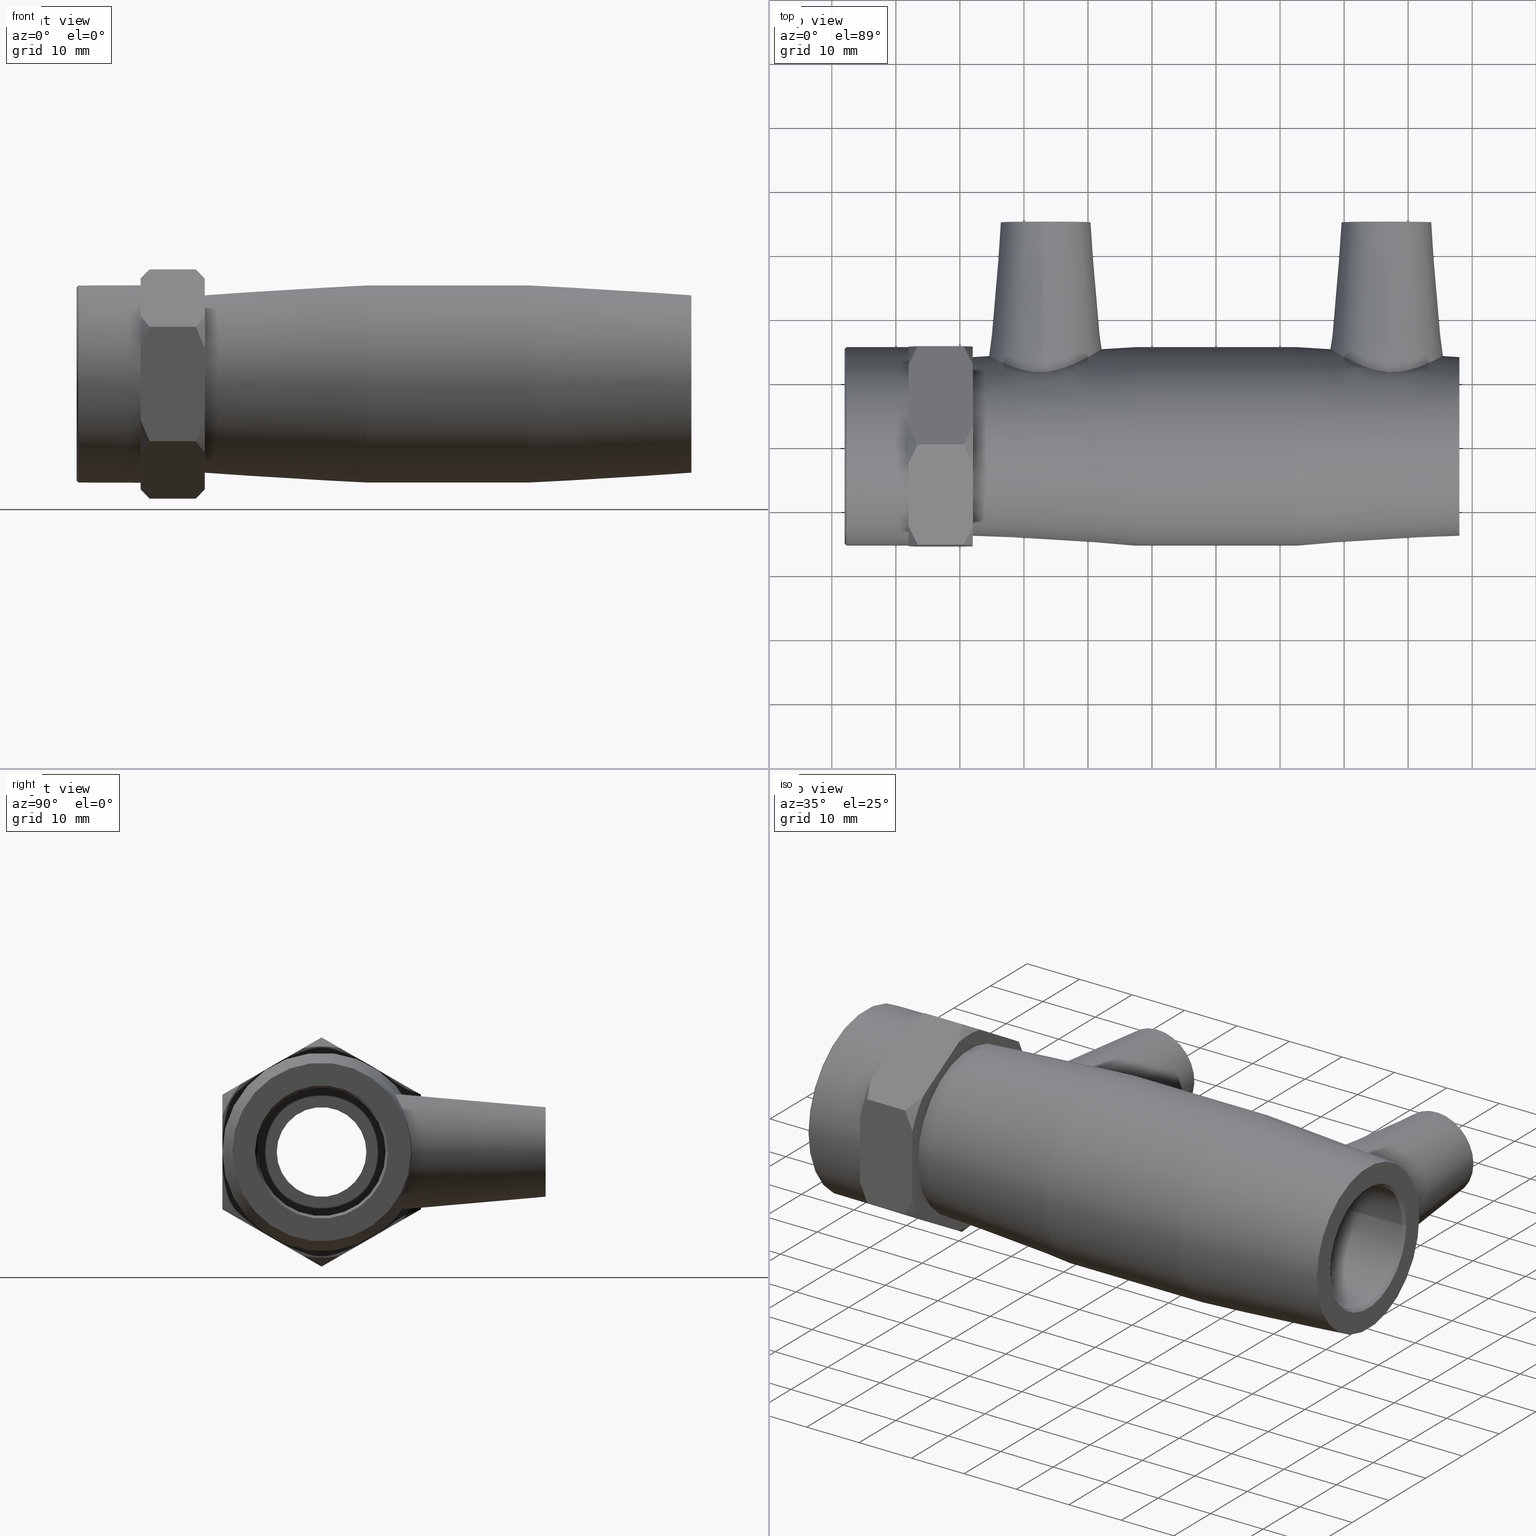
[diagram: canonical four-view strip — front | top / right | iso, engineering-drawing reading convention]
A machine part, canonical four-view strip (front | top / right | iso — engineering-drawing reading convention). The complete STEP part file that produces these views, byte-faithful:
ISO-10303-21;
HEADER;
/* Generated by software containing ST-Developer
 * from STEP Tools, Inc. (www.steptools.com) 
 */

FILE_DESCRIPTION(
/* description */ ('PLASSON FEMALE TRANSITION COUPLER 20-1/2"'),
/* implementation_level */ '2;1');

FILE_NAME(
/* name */ 
'C:\\Dropbox\\KIMPROJECTS-Inventor\\99-16-3568-Processing\\ElectroFusi
on Fittings\\493104\\493104020005.ipt.stp',
/* time_stamp */ '2017-11-06T09:15:33+02:00',
/* author */ ('KIM'),
/* organization */ (''),
/* preprocessor_version */ 'ST-DEVELOPER v15.6',
/* originating_system */ 'Autodesk Inventor 2015',
/* authorisation */ '');

FILE_SCHEMA (('AUTOMOTIVE_DESIGN { 1 0 10303 214 3 1 1 }'));
ENDSEC;

DATA;
#10=MECHANICAL_DESIGN_GEOMETRIC_PRESENTATION_REPRESENTATION('',(#13),#1437);
#11=SHAPE_REPRESENTATION_RELATIONSHIP('SRR','None',#1446,#12);
#12=ADVANCED_BREP_SHAPE_REPRESENTATION($,(#14),#1436);
#13=STYLED_ITEM('',(#1455),#14);
#14=MANIFOLD_SOLID_BREP('Solid1',#766);
#15=B_SPLINE_CURVE_WITH_KNOTS('',3,(#1338,#1339,#1340,#1341,#1342,#1343,
#1344,#1345,#1346,#1347,#1348,#1349,#1350,#1351,#1352,#1353,#1354,#1355,
#1356,#1357,#1358,#1359,#1360,#1361,#1362,#1363,#1364,#1365,#1366,#1367,
#1368,#1369,#1370,#1371,#1372,#1373,#1374,#1375),.UNSPECIFIED.,.T.,.F.,
(4,2,2,2,2,2,2,2,2,2,2,2,2,2,2,2,2,2,4),(0.,0.366937850972028,0.733875701944055,
1.0855573252233,1.43723894850253,1.78892057178177,2.14060219506101,2.50754004603304,
2.87447789700507,3.0429704455618,3.21146299411853,3.54844809123198,3.88497734946358,
4.22150660769519,4.55803586592679,4.89456512415839,5.23155022127185,5.40004276982858,
5.56853531838531),.UNSPECIFIED.);
#16=B_SPLINE_CURVE_WITH_KNOTS('',3,(#1379,#1380,#1381,#1382,#1383,#1384,
#1385,#1386,#1387,#1388,#1389,#1390,#1391,#1392,#1393,#1394,#1395,#1396,
#1397,#1398,#1399,#1400,#1401,#1402,#1403,#1404,#1405,#1406,#1407,#1408,
#1409,#1410,#1411,#1412,#1413,#1414,#1415,#1416),.UNSPECIFIED.,.T.,.F.,
(4,2,2,2,2,2,2,2,2,2,2,2,2,2,2,2,2,2,4),(0.,0.168492548556728,0.336985097113456,
0.673970194226912,1.01049945245852,1.34702871069012,1.68355796892172,2.02008722715332,
2.35707232426678,2.52556487282351,2.69405742138024,3.06099527235226,3.42793312332429,
3.77961474660353,4.13129636988277,4.48297799316201,4.83465961644125,5.20159746741328,
5.56853531838531),.UNSPECIFIED.);
#17=LINE('',#1263,#41);
#18=LINE('',#1264,#42);
#19=LINE('',#1266,#43);
#20=LINE('',#1267,#44);
#21=LINE('',#1269,#45);
#22=LINE('',#1270,#46);
#23=LINE('',#1272,#47);
#24=LINE('',#1273,#48);
#25=LINE('',#1275,#49);
#26=LINE('',#1276,#50);
#27=LINE('',#1277,#51);
#28=LINE('',#1278,#52);
#29=LINE('',#1280,#53);
#30=LINE('',#1281,#54);
#31=LINE('',#1283,#55);
#32=LINE('',#1284,#56);
#33=LINE('',#1286,#57);
#34=LINE('',#1288,#58);
#35=LINE('',#1289,#59);
#36=LINE('',#1290,#60);
#37=LINE('',#1292,#61);
#38=LINE('',#1293,#62);
#39=LINE('',#1295,#63);
#40=LINE('',#1297,#64);
#41=VECTOR('',#965,5.65060438959161);
#42=VECTOR('',#966,5.65060438959176);
#43=VECTOR('',#969,5.65060438959176);
#44=VECTOR('',#970,5.65060438959184);
#45=VECTOR('',#973,5.65060438959181);
#46=VECTOR('',#974,5.6506043895917);
#47=VECTOR('',#977,5.6506043895917);
#48=VECTOR('',#978,5.6506043895916);
#49=VECTOR('',#981,7.2);
#50=VECTOR('',#982,11.3012087791832);
#51=VECTOR('',#983,7.2);
#52=VECTOR('',#984,5.65060438959161);
#53=VECTOR('',#987,7.2);
#54=VECTOR('',#988,11.3012087791835);
#55=VECTOR('',#991,5.65060438959184);
#56=VECTOR('',#992,5.65060438959181);
#57=VECTOR('',#995,5.6506043895916);
#58=VECTOR('',#998,7.20000000000001);
#59=VECTOR('',#999,11.3012087791836);
#60=VECTOR('',#1000,7.2);
#61=VECTOR('',#1003,7.2);
#62=VECTOR('',#1004,11.3012087791834);
#63=VECTOR('',#1007,11.3012087791832);
#64=VECTOR('',#1010,11.3012087791837);
#65=(
BOUNDED_CURVE()
B_SPLINE_CURVE(2,(#1133,#1134,#1135),.UNSPECIFIED.,.F.,.F.)
B_SPLINE_CURVE_WITH_KNOTS((3,3),(0.,0.358514613542276),.UNSPECIFIED.)
CURVE()
GEOMETRIC_REPRESENTATION_ITEM()
RATIONAL_B_SPLINE_CURVE((1.,1.00462973355019,1.))
REPRESENTATION_ITEM('')
);
#66=(
BOUNDED_CURVE()
B_SPLINE_CURVE(2,(#1138,#1139,#1140),.UNSPECIFIED.,.F.,.F.)
B_SPLINE_CURVE_WITH_KNOTS((3,3),(0.,0.358514613542277),.UNSPECIFIED.)
CURVE()
GEOMETRIC_REPRESENTATION_ITEM()
RATIONAL_B_SPLINE_CURVE((1.,1.0046297335503,1.))
REPRESENTATION_ITEM('')
);
#67=(
BOUNDED_CURVE()
B_SPLINE_CURVE(2,(#1144,#1145,#1146),.UNSPECIFIED.,.F.,.F.)
B_SPLINE_CURVE_WITH_KNOTS((3,3),(0.,0.358514613542281),.UNSPECIFIED.)
CURVE()
GEOMETRIC_REPRESENTATION_ITEM()
RATIONAL_B_SPLINE_CURVE((1.,1.0046297335501,1.))
REPRESENTATION_ITEM('')
);
#68=(
BOUNDED_CURVE()
B_SPLINE_CURVE(2,(#1148,#1149,#1150),.UNSPECIFIED.,.F.,.F.)
B_SPLINE_CURVE_WITH_KNOTS((3,3),(0.,0.358514613542277),.UNSPECIFIED.)
CURVE()
GEOMETRIC_REPRESENTATION_ITEM()
RATIONAL_B_SPLINE_CURVE((1.,1.00462973355031,1.))
REPRESENTATION_ITEM('')
);
#69=(
BOUNDED_CURVE()
B_SPLINE_CURVE(2,(#1155,#1156,#1157),.UNSPECIFIED.,.F.,.F.)
B_SPLINE_CURVE_WITH_KNOTS((3,3),(0.,0.358514613542276),.UNSPECIFIED.)
CURVE()
GEOMETRIC_REPRESENTATION_ITEM()
RATIONAL_B_SPLINE_CURVE((1.,1.00462973355019,1.))
REPRESENTATION_ITEM('')
);
#70=(
BOUNDED_CURVE()
B_SPLINE_CURVE(2,(#1159,#1160,#1161),.UNSPECIFIED.,.F.,.F.)
B_SPLINE_CURVE_WITH_KNOTS((3,3),(0.,0.358514613542279),.UNSPECIFIED.)
CURVE()
GEOMETRIC_REPRESENTATION_ITEM()
RATIONAL_B_SPLINE_CURVE((1.,1.00462973355031,1.))
REPRESENTATION_ITEM('')
);
#71=(
BOUNDED_CURVE()
B_SPLINE_CURVE(2,(#1166,#1167,#1168),.UNSPECIFIED.,.F.,.F.)
B_SPLINE_CURVE_WITH_KNOTS((3,3),(0.,0.358514613542285),.UNSPECIFIED.)
CURVE()
GEOMETRIC_REPRESENTATION_ITEM()
RATIONAL_B_SPLINE_CURVE((1.,1.00462973355022,1.))
REPRESENTATION_ITEM('')
);
#72=(
BOUNDED_CURVE()
B_SPLINE_CURVE(2,(#1170,#1171,#1172),.UNSPECIFIED.,.F.,.F.)
B_SPLINE_CURVE_WITH_KNOTS((3,3),(0.,0.358514613542282),.UNSPECIFIED.)
CURVE()
GEOMETRIC_REPRESENTATION_ITEM()
RATIONAL_B_SPLINE_CURVE((1.,1.00462973355018,1.))
REPRESENTATION_ITEM('')
);
#73=(
BOUNDED_CURVE()
B_SPLINE_CURVE(2,(#1177,#1178,#1179),.UNSPECIFIED.,.F.,.F.)
B_SPLINE_CURVE_WITH_KNOTS((3,3),(0.,0.358514613542286),.UNSPECIFIED.)
CURVE()
GEOMETRIC_REPRESENTATION_ITEM()
RATIONAL_B_SPLINE_CURVE((1.,1.00462973355033,1.))
REPRESENTATION_ITEM('')
);
#74=(
BOUNDED_CURVE()
B_SPLINE_CURVE(2,(#1182,#1183,#1184),.UNSPECIFIED.,.F.,.F.)
B_SPLINE_CURVE_WITH_KNOTS((3,3),(0.,0.358514613542285),.UNSPECIFIED.)
CURVE()
GEOMETRIC_REPRESENTATION_ITEM()
RATIONAL_B_SPLINE_CURVE((1.,1.0046297335502,1.))
REPRESENTATION_ITEM('')
);
#75=(
BOUNDED_CURVE()
B_SPLINE_CURVE(2,(#1188,#1189,#1190),.UNSPECIFIED.,.F.,.F.)
B_SPLINE_CURVE_WITH_KNOTS((3,3),(0.,0.358514613542279),.UNSPECIFIED.)
CURVE()
GEOMETRIC_REPRESENTATION_ITEM()
RATIONAL_B_SPLINE_CURVE((1.,1.00462973355008,1.))
REPRESENTATION_ITEM('')
);
#76=(
BOUNDED_CURVE()
B_SPLINE_CURVE(2,(#1192,#1193,#1194),.UNSPECIFIED.,.F.,.F.)
B_SPLINE_CURVE_WITH_KNOTS((3,3),(0.,0.358514613542284),.UNSPECIFIED.)
CURVE()
GEOMETRIC_REPRESENTATION_ITEM()
RATIONAL_B_SPLINE_CURVE((1.,1.00462973355009,1.))
REPRESENTATION_ITEM('')
);
#77=(
BOUNDED_CURVE()
B_SPLINE_CURVE(2,(#1199,#1200,#1201),.UNSPECIFIED.,.F.,.F.)
B_SPLINE_CURVE_WITH_KNOTS((3,3),(0.,0.358514613542286),.UNSPECIFIED.)
CURVE()
GEOMETRIC_REPRESENTATION_ITEM()
RATIONAL_B_SPLINE_CURVE((1.,1.00462973355007,1.))
REPRESENTATION_ITEM('')
);
#78=(
BOUNDED_CURVE()
B_SPLINE_CURVE(2,(#1204,#1205,#1206),.UNSPECIFIED.,.F.,.F.)
B_SPLINE_CURVE_WITH_KNOTS((3,3),(0.,0.358514613542283),.UNSPECIFIED.)
CURVE()
GEOMETRIC_REPRESENTATION_ITEM()
RATIONAL_B_SPLINE_CURVE((1.,1.00462973355015,1.))
REPRESENTATION_ITEM('')
);
#79=(
BOUNDED_CURVE()
B_SPLINE_CURVE(2,(#1210,#1211,#1212),.UNSPECIFIED.,.F.,.F.)
B_SPLINE_CURVE_WITH_KNOTS((3,3),(0.,0.358514613542283),.UNSPECIFIED.)
CURVE()
GEOMETRIC_REPRESENTATION_ITEM()
RATIONAL_B_SPLINE_CURVE((1.,1.00462973355003,1.))
REPRESENTATION_ITEM('')
);
#80=(
BOUNDED_CURVE()
B_SPLINE_CURVE(2,(#1215,#1216,#1217),.UNSPECIFIED.,.F.,.F.)
B_SPLINE_CURVE_WITH_KNOTS((3,3),(0.,0.358514613542278),.UNSPECIFIED.)
CURVE()
GEOMETRIC_REPRESENTATION_ITEM()
RATIONAL_B_SPLINE_CURVE((1.,1.00462973355015,1.))
REPRESENTATION_ITEM('')
);
#81=(
BOUNDED_CURVE()
B_SPLINE_CURVE(2,(#1221,#1222,#1223),.UNSPECIFIED.,.F.,.F.)
B_SPLINE_CURVE_WITH_KNOTS((3,3),(0.,0.358514613542278),.UNSPECIFIED.)
CURVE()
GEOMETRIC_REPRESENTATION_ITEM()
RATIONAL_B_SPLINE_CURVE((1.,1.00462973355004,1.))
REPRESENTATION_ITEM('')
);
#82=(
BOUNDED_CURVE()
B_SPLINE_CURVE(2,(#1225,#1226,#1227),.UNSPECIFIED.,.F.,.F.)
B_SPLINE_CURVE_WITH_KNOTS((3,3),(0.,0.358514613542278),.UNSPECIFIED.)
CURVE()
GEOMETRIC_REPRESENTATION_ITEM()
RATIONAL_B_SPLINE_CURVE((1.,1.00462973354997,1.))
REPRESENTATION_ITEM('')
);
#83=(
BOUNDED_CURVE()
B_SPLINE_CURVE(2,(#1232,#1233,#1234),.UNSPECIFIED.,.F.,.F.)
B_SPLINE_CURVE_WITH_KNOTS((3,3),(0.,0.358514613542287),.UNSPECIFIED.)
CURVE()
GEOMETRIC_REPRESENTATION_ITEM()
RATIONAL_B_SPLINE_CURVE((1.,1.0046297335501,1.))
REPRESENTATION_ITEM('')
);
#84=(
BOUNDED_CURVE()
B_SPLINE_CURVE(2,(#1236,#1237,#1238),.UNSPECIFIED.,.F.,.F.)
B_SPLINE_CURVE_WITH_KNOTS((3,3),(0.,0.358514613542285),.UNSPECIFIED.)
CURVE()
GEOMETRIC_REPRESENTATION_ITEM()
RATIONAL_B_SPLINE_CURVE((1.,1.00462973355006,1.))
REPRESENTATION_ITEM('')
);
#85=(
BOUNDED_CURVE()
B_SPLINE_CURVE(2,(#1243,#1244,#1245),.UNSPECIFIED.,.F.,.F.)
B_SPLINE_CURVE_WITH_KNOTS((3,3),(0.,0.358514613542278),.UNSPECIFIED.)
CURVE()
GEOMETRIC_REPRESENTATION_ITEM()
RATIONAL_B_SPLINE_CURVE((1.,1.00462973355004,1.))
REPRESENTATION_ITEM('')
);
#86=(
BOUNDED_CURVE()
B_SPLINE_CURVE(2,(#1248,#1249,#1250),.UNSPECIFIED.,.F.,.F.)
B_SPLINE_CURVE_WITH_KNOTS((3,3),(0.,0.358514613542281),.UNSPECIFIED.)
CURVE()
GEOMETRIC_REPRESENTATION_ITEM()
RATIONAL_B_SPLINE_CURVE((1.,1.00462973355004,1.))
REPRESENTATION_ITEM('')
);
#87=(
BOUNDED_CURVE()
B_SPLINE_CURVE(2,(#1254,#1255,#1256),.UNSPECIFIED.,.F.,.F.)
B_SPLINE_CURVE_WITH_KNOTS((3,3),(0.,0.358514613542281),.UNSPECIFIED.)
CURVE()
GEOMETRIC_REPRESENTATION_ITEM()
RATIONAL_B_SPLINE_CURVE((1.,1.00462973355008,1.))
REPRESENTATION_ITEM('')
);
#88=(
BOUNDED_CURVE()
B_SPLINE_CURVE(2,(#1259,#1260,#1261),.UNSPECIFIED.,.F.,.F.)
B_SPLINE_CURVE_WITH_KNOTS((3,3),(0.,0.358514613542285),.UNSPECIFIED.)
CURVE()
GEOMETRIC_REPRESENTATION_ITEM()
RATIONAL_B_SPLINE_CURVE((1.,1.00462973355014,1.))
REPRESENTATION_ITEM('')
);
#89=CYLINDRICAL_SURFACE('',#773,10.);
#90=CYLINDRICAL_SURFACE('',#780,9.31550000000001);
#91=CYLINDRICAL_SURFACE('',#784,15.5);
#92=CYLINDRICAL_SURFACE('',#827,7.);
#93=CYLINDRICAL_SURFACE('',#835,2.);
#94=CYLINDRICAL_SURFACE('',#837,5.);
#95=CYLINDRICAL_SURFACE('',#843,2.);
#96=CYLINDRICAL_SURFACE('',#845,5.);
#97=CYLINDRICAL_SURFACE('',#855,15.5);
#98=CYLINDRICAL_SURFACE('',#863,10.);
#99=PLANE('',#771);
#100=PLANE('',#778);
#101=PLANE('',#815);
#102=PLANE('',#816);
#103=PLANE('',#817);
#104=PLANE('',#818);
#105=PLANE('',#819);
#106=PLANE('',#820);
#107=PLANE('',#821);
#108=PLANE('',#822);
#109=PLANE('',#823);
#110=PLANE('',#824);
#111=PLANE('',#825);
#112=PLANE('',#826);
#113=PLANE('',#830);
#114=PLANE('',#831);
#115=PLANE('',#833);
#116=PLANE('',#840);
#117=PLANE('',#841);
#118=PLANE('',#848);
#119=PLANE('',#849);
#120=PLANE('',#853);
#121=PLANE('',#861);
#122=PLANE('',#865);
#123=FACE_BOUND('',#208,.T.);
#124=FACE_BOUND('',#210,.T.);
#125=FACE_BOUND('',#212,.T.);
#126=FACE_BOUND('',#214,.T.);
#127=FACE_BOUND('',#216,.T.);
#128=FACE_BOUND('',#218,.T.);
#129=FACE_BOUND('',#220,.T.);
#130=FACE_BOUND('',#222,.T.);
#131=FACE_BOUND('',#248,.T.);
#132=FACE_BOUND('',#250,.T.);
#133=FACE_BOUND('',#252,.T.);
#134=FACE_BOUND('',#255,.T.);
#135=FACE_BOUND('',#257,.T.);
#136=FACE_BOUND('',#259,.T.);
#137=FACE_BOUND('',#262,.T.);
#138=FACE_BOUND('',#264,.T.);
#139=FACE_BOUND('',#266,.T.);
#140=FACE_BOUND('',#268,.T.);
#141=FACE_BOUND('',#270,.T.);
#142=FACE_BOUND('',#272,.T.);
#143=FACE_BOUND('',#274,.T.);
#144=FACE_BOUND('',#276,.T.);
#145=FACE_BOUND('',#278,.T.);
#146=FACE_BOUND('',#279,.T.);
#147=FACE_BOUND('',#281,.T.);
#148=FACE_BOUND('',#283,.T.);
#149=FACE_BOUND('',#285,.T.);
#150=FACE_BOUND('',#287,.T.);
#151=FACE_BOUND('',#289,.T.);
#152=FACE_BOUND('',#290,.T.);
#153=FACE_OUTER_BOUND('',#207,.T.);
#154=FACE_OUTER_BOUND('',#209,.T.);
#155=FACE_OUTER_BOUND('',#211,.T.);
#156=FACE_OUTER_BOUND('',#213,.T.);
#157=FACE_OUTER_BOUND('',#215,.T.);
#158=FACE_OUTER_BOUND('',#217,.T.);
#159=FACE_OUTER_BOUND('',#219,.T.);
#160=FACE_OUTER_BOUND('',#221,.T.);
#161=FACE_OUTER_BOUND('',#223,.T.);
#162=FACE_OUTER_BOUND('',#224,.T.);
#163=FACE_OUTER_BOUND('',#225,.T.);
#164=FACE_OUTER_BOUND('',#226,.T.);
#165=FACE_OUTER_BOUND('',#227,.T.);
#166=FACE_OUTER_BOUND('',#228,.T.);
#167=FACE_OUTER_BOUND('',#229,.T.);
#168=FACE_OUTER_BOUND('',#230,.T.);
#169=FACE_OUTER_BOUND('',#231,.T.);
#170=FACE_OUTER_BOUND('',#232,.T.);
#171=FACE_OUTER_BOUND('',#233,.T.);
#172=FACE_OUTER_BOUND('',#234,.T.);
#173=FACE_OUTER_BOUND('',#235,.T.);
#174=FACE_OUTER_BOUND('',#236,.T.);
#175=FACE_OUTER_BOUND('',#237,.T.);
#176=FACE_OUTER_BOUND('',#238,.T.);
#177=FACE_OUTER_BOUND('',#239,.T.);
#178=FACE_OUTER_BOUND('',#240,.T.);
#179=FACE_OUTER_BOUND('',#241,.T.);
#180=FACE_OUTER_BOUND('',#242,.T.);
#181=FACE_OUTER_BOUND('',#243,.T.);
#182=FACE_OUTER_BOUND('',#244,.T.);
#183=FACE_OUTER_BOUND('',#245,.T.);
#184=FACE_OUTER_BOUND('',#246,.T.);
#185=FACE_OUTER_BOUND('',#247,.T.);
#186=FACE_OUTER_BOUND('',#249,.T.);
#187=FACE_OUTER_BOUND('',#251,.T.);
#188=FACE_OUTER_BOUND('',#253,.T.);
#189=FACE_OUTER_BOUND('',#254,.T.);
#190=FACE_OUTER_BOUND('',#256,.T.);
#191=FACE_OUTER_BOUND('',#258,.T.);
#192=FACE_OUTER_BOUND('',#260,.T.);
#193=FACE_OUTER_BOUND('',#261,.T.);
#194=FACE_OUTER_BOUND('',#263,.T.);
#195=FACE_OUTER_BOUND('',#265,.T.);
#196=FACE_OUTER_BOUND('',#267,.T.);
#197=FACE_OUTER_BOUND('',#269,.T.);
#198=FACE_OUTER_BOUND('',#271,.T.);
#199=FACE_OUTER_BOUND('',#273,.T.);
#200=FACE_OUTER_BOUND('',#275,.T.);
#201=FACE_OUTER_BOUND('',#277,.T.);
#202=FACE_OUTER_BOUND('',#280,.T.);
#203=FACE_OUTER_BOUND('',#282,.T.);
#204=FACE_OUTER_BOUND('',#284,.T.);
#205=FACE_OUTER_BOUND('',#286,.T.);
#206=FACE_OUTER_BOUND('',#288,.T.);
#207=EDGE_LOOP('',(#502));
#208=EDGE_LOOP('',(#503));
#209=EDGE_LOOP('',(#504));
#210=EDGE_LOOP('',(#505));
#211=EDGE_LOOP('',(#506));
#212=EDGE_LOOP('',(#507));
#213=EDGE_LOOP('',(#508));
#214=EDGE_LOOP('',(#509));
#215=EDGE_LOOP('',(#510));
#216=EDGE_LOOP('',(#511));
#217=EDGE_LOOP('',(#512));
#218=EDGE_LOOP('',(#513));
#219=EDGE_LOOP('',(#514));
#220=EDGE_LOOP('',(#515));
#221=EDGE_LOOP('',(#516,#517,#518,#519,#520,#521));
#222=EDGE_LOOP('',(#522));
#223=EDGE_LOOP('',(#523,#524,#525));
#224=EDGE_LOOP('',(#526,#527,#528));
#225=EDGE_LOOP('',(#529,#530,#531));
#226=EDGE_LOOP('',(#532,#533,#534));
#227=EDGE_LOOP('',(#535,#536,#537));
#228=EDGE_LOOP('',(#538,#539,#540));
#229=EDGE_LOOP('',(#541,#542,#543));
#230=EDGE_LOOP('',(#544,#545,#546));
#231=EDGE_LOOP('',(#547,#548,#549));
#232=EDGE_LOOP('',(#550,#551,#552));
#233=EDGE_LOOP('',(#553,#554,#555));
#234=EDGE_LOOP('',(#556,#557,#558));
#235=EDGE_LOOP('',(#559,#560,#561,#562));
#236=EDGE_LOOP('',(#563,#564,#565,#566));
#237=EDGE_LOOP('',(#567,#568,#569,#570));
#238=EDGE_LOOP('',(#571,#572,#573,#574));
#239=EDGE_LOOP('',(#575,#576,#577,#578,#579,#580,#581,#582,#583));
#240=EDGE_LOOP('',(#584,#585,#586,#587,#588,#589,#590,#591,#592));
#241=EDGE_LOOP('',(#593,#594,#595,#596));
#242=EDGE_LOOP('',(#597,#598,#599,#600));
#243=EDGE_LOOP('',(#601,#602,#603,#604,#605,#606,#607,#608,#609));
#244=EDGE_LOOP('',(#610,#611,#612,#613,#614,#615,#616,#617,#618));
#245=EDGE_LOOP('',(#619,#620,#621,#622,#623,#624,#625,#626,#627));
#246=EDGE_LOOP('',(#628,#629,#630,#631,#632,#633,#634,#635,#636));
#247=EDGE_LOOP('',(#637));
#248=EDGE_LOOP('',(#638));
#249=EDGE_LOOP('',(#639));
#250=EDGE_LOOP('',(#640));
#251=EDGE_LOOP('',(#641,#642,#643,#644,#645,#646,#647,#648,#649,#650,#651,
#652));
#252=EDGE_LOOP('',(#653));
#253=EDGE_LOOP('',(#654));
#254=EDGE_LOOP('',(#655));
#255=EDGE_LOOP('',(#656));
#256=EDGE_LOOP('',(#657));
#257=EDGE_LOOP('',(#658));
#258=EDGE_LOOP('',(#659));
#259=EDGE_LOOP('',(#660));
#260=EDGE_LOOP('',(#661));
#261=EDGE_LOOP('',(#662));
#262=EDGE_LOOP('',(#663));
#263=EDGE_LOOP('',(#664));
#264=EDGE_LOOP('',(#665));
#265=EDGE_LOOP('',(#666));
#266=EDGE_LOOP('',(#667));
#267=EDGE_LOOP('',(#668));
#268=EDGE_LOOP('',(#669));
#269=EDGE_LOOP('',(#670));
#270=EDGE_LOOP('',(#671));
#271=EDGE_LOOP('',(#672));
#272=EDGE_LOOP('',(#673));
#273=EDGE_LOOP('',(#674));
#274=EDGE_LOOP('',(#675));
#275=EDGE_LOOP('',(#676));
#276=EDGE_LOOP('',(#677));
#277=EDGE_LOOP('',(#678));
#278=EDGE_LOOP('',(#679));
#279=EDGE_LOOP('',(#680));
#280=EDGE_LOOP('',(#681));
#281=EDGE_LOOP('',(#682));
#282=EDGE_LOOP('',(#683));
#283=EDGE_LOOP('',(#684));
#284=EDGE_LOOP('',(#685));
#285=EDGE_LOOP('',(#686));
#286=EDGE_LOOP('',(#687));
#287=EDGE_LOOP('',(#688));
#288=EDGE_LOOP('',(#689));
#289=EDGE_LOOP('',(#690));
#290=EDGE_LOOP('',(#691));
#291=CIRCLE('',#769,10.4);
#292=CIRCLE('',#770,10.);
#293=CIRCLE('',#772,13.95);
#294=CIRCLE('',#774,10.);
#295=CIRCLE('',#776,9.31550000000001);
#296=CIRCLE('',#777,9.6155);
#297=CIRCLE('',#779,15.2);
#298=CIRCLE('',#781,9.31550000000001);
#299=CIRCLE('',#783,15.5);
#300=CIRCLE('',#785,15.5);
#301=CIRCLE('',#786,15.5);
#302=CIRCLE('',#787,15.5);
#303=CIRCLE('',#788,15.5);
#304=CIRCLE('',#789,15.5);
#305=CIRCLE('',#790,15.5);
#306=CIRCLE('',#792,16.4978583448784);
#307=CIRCLE('',#794,16.4978583448784);
#308=CIRCLE('',#796,16.4978583448784);
#309=CIRCLE('',#798,16.4978583448784);
#310=CIRCLE('',#800,16.4978583448784);
#311=CIRCLE('',#802,16.4978583448784);
#312=CIRCLE('',#804,16.4978583448784);
#313=CIRCLE('',#806,16.4978583448784);
#314=CIRCLE('',#808,16.4978583448784);
#315=CIRCLE('',#810,16.4978583448784);
#316=CIRCLE('',#812,16.4978583448784);
#317=CIRCLE('',#814,16.4978583448784);
#318=CIRCLE('',#828,7.00000000000001);
#319=CIRCLE('',#829,7.);
#320=CIRCLE('',#832,13.95);
#321=CIRCLE('',#834,2.);
#322=CIRCLE('',#836,2.);
#323=CIRCLE('',#838,5.);
#324=CIRCLE('',#839,5.);
#325=CIRCLE('',#842,2.);
#326=CIRCLE('',#844,2.);
#327=CIRCLE('',#846,5.);
#328=CIRCLE('',#847,5.);
#329=CIRCLE('',#850,7.);
#330=CIRCLE('',#852,7.);
#331=CIRCLE('',#856,15.5);
#332=CIRCLE('',#857,15.5);
#333=CIRCLE('',#860,11.0486123709054);
#334=CIRCLE('',#862,10.);
#335=CIRCLE('',#864,10.);
#336=VERTEX_POINT('',#1093);
#337=VERTEX_POINT('',#1095);
#338=VERTEX_POINT('',#1098);
#339=VERTEX_POINT('',#1101);
#340=VERTEX_POINT('',#1104);
#341=VERTEX_POINT('',#1106);
#342=VERTEX_POINT('',#1109);
#343=VERTEX_POINT('',#1112);
#344=VERTEX_POINT('',#1115);
#345=VERTEX_POINT('',#1118);
#346=VERTEX_POINT('',#1119);
#347=VERTEX_POINT('',#1121);
#348=VERTEX_POINT('',#1123);
#349=VERTEX_POINT('',#1125);
#350=VERTEX_POINT('',#1127);
#351=VERTEX_POINT('',#1131);
#352=VERTEX_POINT('',#1132);
#353=VERTEX_POINT('',#1136);
#354=VERTEX_POINT('',#1142);
#355=VERTEX_POINT('',#1143);
#356=VERTEX_POINT('',#1147);
#357=VERTEX_POINT('',#1153);
#358=VERTEX_POINT('',#1154);
#359=VERTEX_POINT('',#1158);
#360=VERTEX_POINT('',#1164);
#361=VERTEX_POINT('',#1165);
#362=VERTEX_POINT('',#1169);
#363=VERTEX_POINT('',#1175);
#364=VERTEX_POINT('',#1176);
#365=VERTEX_POINT('',#1180);
#366=VERTEX_POINT('',#1186);
#367=VERTEX_POINT('',#1187);
#368=VERTEX_POINT('',#1191);
#369=VERTEX_POINT('',#1197);
#370=VERTEX_POINT('',#1198);
#371=VERTEX_POINT('',#1202);
#372=VERTEX_POINT('',#1208);
#373=VERTEX_POINT('',#1209);
#374=VERTEX_POINT('',#1213);
#375=VERTEX_POINT('',#1219);
#376=VERTEX_POINT('',#1220);
#377=VERTEX_POINT('',#1224);
#378=VERTEX_POINT('',#1230);
#379=VERTEX_POINT('',#1231);
#380=VERTEX_POINT('',#1235);
#381=VERTEX_POINT('',#1241);
#382=VERTEX_POINT('',#1242);
#383=VERTEX_POINT('',#1246);
#384=VERTEX_POINT('',#1252);
#385=VERTEX_POINT('',#1253);
#386=VERTEX_POINT('',#1257);
#387=VERTEX_POINT('',#1299);
#388=VERTEX_POINT('',#1301);
#389=VERTEX_POINT('',#1305);
#390=VERTEX_POINT('',#1308);
#391=VERTEX_POINT('',#1311);
#392=VERTEX_POINT('',#1314);
#393=VERTEX_POINT('',#1316);
#394=VERTEX_POINT('',#1320);
#395=VERTEX_POINT('',#1323);
#396=VERTEX_POINT('',#1326);
#397=VERTEX_POINT('',#1328);
#398=VERTEX_POINT('',#1332);
#399=VERTEX_POINT('',#1335);
#400=VERTEX_POINT('',#1337);
#401=VERTEX_POINT('',#1378);
#402=VERTEX_POINT('',#1418);
#403=VERTEX_POINT('',#1420);
#404=VERTEX_POINT('',#1424);
#405=VERTEX_POINT('',#1427);
#406=VERTEX_POINT('',#1430);
#407=EDGE_CURVE('',#336,#336,#291,.T.);
#408=EDGE_CURVE('',#337,#337,#292,.T.);
#409=EDGE_CURVE('',#338,#338,#293,.T.);
#410=EDGE_CURVE('',#339,#339,#294,.T.);
#411=EDGE_CURVE('',#340,#340,#295,.T.);
#412=EDGE_CURVE('',#341,#341,#296,.T.);
#413=EDGE_CURVE('',#342,#342,#297,.T.);
#414=EDGE_CURVE('',#343,#343,#298,.T.);
#415=EDGE_CURVE('',#344,#344,#299,.T.);
#416=EDGE_CURVE('',#345,#346,#300,.T.);
#417=EDGE_CURVE('',#346,#347,#301,.T.);
#418=EDGE_CURVE('',#347,#348,#302,.T.);
#419=EDGE_CURVE('',#348,#349,#303,.T.);
#420=EDGE_CURVE('',#349,#350,#304,.T.);
#421=EDGE_CURVE('',#350,#345,#305,.T.);
#422=EDGE_CURVE('',#351,#352,#65,.T.);
#423=EDGE_CURVE('',#353,#351,#306,.T.);
#424=EDGE_CURVE('',#352,#353,#66,.T.);
#425=EDGE_CURVE('',#354,#355,#67,.T.);
#426=EDGE_CURVE('',#356,#354,#68,.T.);
#427=EDGE_CURVE('',#355,#356,#307,.T.);
#428=EDGE_CURVE('',#357,#358,#69,.T.);
#429=EDGE_CURVE('',#359,#357,#70,.T.);
#430=EDGE_CURVE('',#358,#359,#308,.T.);
#431=EDGE_CURVE('',#360,#361,#71,.T.);
#432=EDGE_CURVE('',#362,#360,#72,.T.);
#433=EDGE_CURVE('',#361,#362,#309,.T.);
#434=EDGE_CURVE('',#363,#364,#73,.T.);
#435=EDGE_CURVE('',#365,#363,#310,.T.);
#436=EDGE_CURVE('',#364,#365,#74,.T.);
#437=EDGE_CURVE('',#366,#367,#75,.T.);
#438=EDGE_CURVE('',#368,#366,#76,.T.);
#439=EDGE_CURVE('',#367,#368,#311,.T.);
#440=EDGE_CURVE('',#369,#370,#77,.T.);
#441=EDGE_CURVE('',#371,#369,#312,.T.);
#442=EDGE_CURVE('',#370,#371,#78,.T.);
#443=EDGE_CURVE('',#372,#373,#79,.T.);
#444=EDGE_CURVE('',#374,#372,#313,.T.);
#445=EDGE_CURVE('',#373,#374,#80,.T.);
#446=EDGE_CURVE('',#375,#376,#81,.T.);
#447=EDGE_CURVE('',#377,#375,#82,.T.);
#448=EDGE_CURVE('',#376,#377,#314,.T.);
#449=EDGE_CURVE('',#378,#379,#83,.T.);
#450=EDGE_CURVE('',#380,#378,#84,.T.);
#451=EDGE_CURVE('',#379,#380,#315,.T.);
#452=EDGE_CURVE('',#381,#382,#85,.T.);
#453=EDGE_CURVE('',#383,#381,#316,.T.);
#454=EDGE_CURVE('',#382,#383,#86,.T.);
#455=EDGE_CURVE('',#384,#385,#87,.T.);
#456=EDGE_CURVE('',#386,#384,#317,.T.);
#457=EDGE_CURVE('',#385,#386,#88,.T.);
#458=EDGE_CURVE('',#368,#347,#17,.T.);
#459=EDGE_CURVE('',#346,#367,#18,.T.);
#460=EDGE_CURVE('',#359,#346,#19,.T.);
#461=EDGE_CURVE('',#345,#358,#20,.T.);
#462=EDGE_CURVE('',#356,#350,#21,.T.);
#463=EDGE_CURVE('',#349,#355,#22,.T.);
#464=EDGE_CURVE('',#362,#349,#23,.T.);
#465=EDGE_CURVE('',#348,#361,#24,.T.);
#466=EDGE_CURVE('',#385,#366,#25,.T.);
#467=EDGE_CURVE('',#386,#380,#26,.T.);
#468=EDGE_CURVE('',#378,#364,#27,.T.);
#469=EDGE_CURVE('',#347,#365,#28,.T.);
#470=EDGE_CURVE('',#382,#357,#29,.T.);
#471=EDGE_CURVE('',#383,#384,#30,.T.);
#472=EDGE_CURVE('',#351,#345,#31,.T.);
#473=EDGE_CURVE('',#350,#353,#32,.T.);
#474=EDGE_CURVE('',#363,#348,#33,.T.);
#475=EDGE_CURVE('',#373,#354,#34,.T.);
#476=EDGE_CURVE('',#374,#377,#35,.T.);
#477=EDGE_CURVE('',#375,#352,#36,.T.);
#478=EDGE_CURVE('',#370,#360,#37,.T.);
#479=EDGE_CURVE('',#371,#372,#38,.T.);
#480=EDGE_CURVE('',#379,#369,#39,.T.);
#481=EDGE_CURVE('',#376,#381,#40,.T.);
#482=EDGE_CURVE('',#387,#387,#318,.T.);
#483=EDGE_CURVE('',#388,#388,#319,.T.);
#484=EDGE_CURVE('',#389,#389,#320,.T.);
#485=EDGE_CURVE('',#390,#390,#321,.T.);
#486=EDGE_CURVE('',#391,#391,#322,.T.);
#487=EDGE_CURVE('',#392,#392,#323,.T.);
#488=EDGE_CURVE('',#393,#393,#324,.T.);
#489=EDGE_CURVE('',#394,#394,#325,.T.);
#490=EDGE_CURVE('',#395,#395,#326,.T.);
#491=EDGE_CURVE('',#396,#396,#327,.T.);
#492=EDGE_CURVE('',#397,#397,#328,.T.);
#493=EDGE_CURVE('',#398,#398,#329,.T.);
#494=EDGE_CURVE('',#399,#399,#330,.T.);
#495=EDGE_CURVE('',#400,#400,#15,.T.);
#496=EDGE_CURVE('',#401,#401,#16,.T.);
#497=EDGE_CURVE('',#402,#402,#331,.T.);
#498=EDGE_CURVE('',#403,#403,#332,.T.);
#499=EDGE_CURVE('',#404,#404,#333,.T.);
#500=EDGE_CURVE('',#405,#405,#334,.T.);
#501=EDGE_CURVE('',#406,#406,#335,.T.);
#502=ORIENTED_EDGE('',*,*,#407,.T.);
#503=ORIENTED_EDGE('',*,*,#408,.T.);
#504=ORIENTED_EDGE('',*,*,#409,.T.);
#505=ORIENTED_EDGE('',*,*,#407,.F.);
#506=ORIENTED_EDGE('',*,*,#410,.F.);
#507=ORIENTED_EDGE('',*,*,#408,.F.);
#508=ORIENTED_EDGE('',*,*,#411,.T.);
#509=ORIENTED_EDGE('',*,*,#412,.T.);
#510=ORIENTED_EDGE('',*,*,#413,.F.);
#511=ORIENTED_EDGE('',*,*,#412,.F.);
#512=ORIENTED_EDGE('',*,*,#414,.T.);
#513=ORIENTED_EDGE('',*,*,#411,.F.);
#514=ORIENTED_EDGE('',*,*,#413,.T.);
#515=ORIENTED_EDGE('',*,*,#415,.T.);
#516=ORIENTED_EDGE('',*,*,#416,.T.);
#517=ORIENTED_EDGE('',*,*,#417,.T.);
#518=ORIENTED_EDGE('',*,*,#418,.T.);
#519=ORIENTED_EDGE('',*,*,#419,.T.);
#520=ORIENTED_EDGE('',*,*,#420,.T.);
#521=ORIENTED_EDGE('',*,*,#421,.T.);
#522=ORIENTED_EDGE('',*,*,#415,.F.);
#523=ORIENTED_EDGE('',*,*,#422,.F.);
#524=ORIENTED_EDGE('',*,*,#423,.F.);
#525=ORIENTED_EDGE('',*,*,#424,.F.);
#526=ORIENTED_EDGE('',*,*,#425,.F.);
#527=ORIENTED_EDGE('',*,*,#426,.F.);
#528=ORIENTED_EDGE('',*,*,#427,.F.);
#529=ORIENTED_EDGE('',*,*,#428,.F.);
#530=ORIENTED_EDGE('',*,*,#429,.F.);
#531=ORIENTED_EDGE('',*,*,#430,.F.);
#532=ORIENTED_EDGE('',*,*,#431,.F.);
#533=ORIENTED_EDGE('',*,*,#432,.F.);
#534=ORIENTED_EDGE('',*,*,#433,.F.);
#535=ORIENTED_EDGE('',*,*,#434,.F.);
#536=ORIENTED_EDGE('',*,*,#435,.F.);
#537=ORIENTED_EDGE('',*,*,#436,.F.);
#538=ORIENTED_EDGE('',*,*,#437,.F.);
#539=ORIENTED_EDGE('',*,*,#438,.F.);
#540=ORIENTED_EDGE('',*,*,#439,.F.);
#541=ORIENTED_EDGE('',*,*,#440,.F.);
#542=ORIENTED_EDGE('',*,*,#441,.F.);
#543=ORIENTED_EDGE('',*,*,#442,.F.);
#544=ORIENTED_EDGE('',*,*,#443,.F.);
#545=ORIENTED_EDGE('',*,*,#444,.F.);
#546=ORIENTED_EDGE('',*,*,#445,.F.);
#547=ORIENTED_EDGE('',*,*,#446,.F.);
#548=ORIENTED_EDGE('',*,*,#447,.F.);
#549=ORIENTED_EDGE('',*,*,#448,.F.);
#550=ORIENTED_EDGE('',*,*,#449,.F.);
#551=ORIENTED_EDGE('',*,*,#450,.F.);
#552=ORIENTED_EDGE('',*,*,#451,.F.);
#553=ORIENTED_EDGE('',*,*,#452,.F.);
#554=ORIENTED_EDGE('',*,*,#453,.F.);
#555=ORIENTED_EDGE('',*,*,#454,.F.);
#556=ORIENTED_EDGE('',*,*,#455,.F.);
#557=ORIENTED_EDGE('',*,*,#456,.F.);
#558=ORIENTED_EDGE('',*,*,#457,.F.);
#559=ORIENTED_EDGE('',*,*,#439,.T.);
#560=ORIENTED_EDGE('',*,*,#458,.T.);
#561=ORIENTED_EDGE('',*,*,#417,.F.);
#562=ORIENTED_EDGE('',*,*,#459,.T.);
#563=ORIENTED_EDGE('',*,*,#430,.T.);
#564=ORIENTED_EDGE('',*,*,#460,.T.);
#565=ORIENTED_EDGE('',*,*,#416,.F.);
#566=ORIENTED_EDGE('',*,*,#461,.T.);
#567=ORIENTED_EDGE('',*,*,#427,.T.);
#568=ORIENTED_EDGE('',*,*,#462,.T.);
#569=ORIENTED_EDGE('',*,*,#420,.F.);
#570=ORIENTED_EDGE('',*,*,#463,.T.);
#571=ORIENTED_EDGE('',*,*,#433,.T.);
#572=ORIENTED_EDGE('',*,*,#464,.T.);
#573=ORIENTED_EDGE('',*,*,#419,.F.);
#574=ORIENTED_EDGE('',*,*,#465,.T.);
#575=ORIENTED_EDGE('',*,*,#438,.T.);
#576=ORIENTED_EDGE('',*,*,#466,.F.);
#577=ORIENTED_EDGE('',*,*,#457,.T.);
#578=ORIENTED_EDGE('',*,*,#467,.T.);
#579=ORIENTED_EDGE('',*,*,#450,.T.);
#580=ORIENTED_EDGE('',*,*,#468,.T.);
#581=ORIENTED_EDGE('',*,*,#436,.T.);
#582=ORIENTED_EDGE('',*,*,#469,.F.);
#583=ORIENTED_EDGE('',*,*,#458,.F.);
#584=ORIENTED_EDGE('',*,*,#437,.T.);
#585=ORIENTED_EDGE('',*,*,#459,.F.);
#586=ORIENTED_EDGE('',*,*,#460,.F.);
#587=ORIENTED_EDGE('',*,*,#429,.T.);
#588=ORIENTED_EDGE('',*,*,#470,.F.);
#589=ORIENTED_EDGE('',*,*,#454,.T.);
#590=ORIENTED_EDGE('',*,*,#471,.T.);
#591=ORIENTED_EDGE('',*,*,#455,.T.);
#592=ORIENTED_EDGE('',*,*,#466,.T.);
#593=ORIENTED_EDGE('',*,*,#423,.T.);
#594=ORIENTED_EDGE('',*,*,#472,.T.);
#595=ORIENTED_EDGE('',*,*,#421,.F.);
#596=ORIENTED_EDGE('',*,*,#473,.T.);
#597=ORIENTED_EDGE('',*,*,#435,.T.);
#598=ORIENTED_EDGE('',*,*,#474,.T.);
#599=ORIENTED_EDGE('',*,*,#418,.F.);
#600=ORIENTED_EDGE('',*,*,#469,.T.);
#601=ORIENTED_EDGE('',*,*,#426,.T.);
#602=ORIENTED_EDGE('',*,*,#475,.F.);
#603=ORIENTED_EDGE('',*,*,#445,.T.);
#604=ORIENTED_EDGE('',*,*,#476,.T.);
#605=ORIENTED_EDGE('',*,*,#447,.T.);
#606=ORIENTED_EDGE('',*,*,#477,.T.);
#607=ORIENTED_EDGE('',*,*,#424,.T.);
#608=ORIENTED_EDGE('',*,*,#473,.F.);
#609=ORIENTED_EDGE('',*,*,#462,.F.);
#610=ORIENTED_EDGE('',*,*,#425,.T.);
#611=ORIENTED_EDGE('',*,*,#463,.F.);
#612=ORIENTED_EDGE('',*,*,#464,.F.);
#613=ORIENTED_EDGE('',*,*,#432,.T.);
#614=ORIENTED_EDGE('',*,*,#478,.F.);
#615=ORIENTED_EDGE('',*,*,#442,.T.);
#616=ORIENTED_EDGE('',*,*,#479,.T.);
#617=ORIENTED_EDGE('',*,*,#443,.T.);
#618=ORIENTED_EDGE('',*,*,#475,.T.);
#619=ORIENTED_EDGE('',*,*,#434,.T.);
#620=ORIENTED_EDGE('',*,*,#468,.F.);
#621=ORIENTED_EDGE('',*,*,#449,.T.);
#622=ORIENTED_EDGE('',*,*,#480,.T.);
#623=ORIENTED_EDGE('',*,*,#440,.T.);
#624=ORIENTED_EDGE('',*,*,#478,.T.);
#625=ORIENTED_EDGE('',*,*,#431,.T.);
#626=ORIENTED_EDGE('',*,*,#465,.F.);
#627=ORIENTED_EDGE('',*,*,#474,.F.);
#628=ORIENTED_EDGE('',*,*,#428,.T.);
#629=ORIENTED_EDGE('',*,*,#461,.F.);
#630=ORIENTED_EDGE('',*,*,#472,.F.);
#631=ORIENTED_EDGE('',*,*,#422,.T.);
#632=ORIENTED_EDGE('',*,*,#477,.F.);
#633=ORIENTED_EDGE('',*,*,#446,.T.);
#634=ORIENTED_EDGE('',*,*,#481,.T.);
#635=ORIENTED_EDGE('',*,*,#452,.T.);
#636=ORIENTED_EDGE('',*,*,#470,.T.);
#637=ORIENTED_EDGE('',*,*,#482,.T.);
#638=ORIENTED_EDGE('',*,*,#483,.F.);
#639=ORIENTED_EDGE('',*,*,#414,.F.);
#640=ORIENTED_EDGE('',*,*,#483,.T.);
#641=ORIENTED_EDGE('',*,*,#456,.T.);
#642=ORIENTED_EDGE('',*,*,#471,.F.);
#643=ORIENTED_EDGE('',*,*,#453,.T.);
#644=ORIENTED_EDGE('',*,*,#481,.F.);
#645=ORIENTED_EDGE('',*,*,#448,.T.);
#646=ORIENTED_EDGE('',*,*,#476,.F.);
#647=ORIENTED_EDGE('',*,*,#444,.T.);
#648=ORIENTED_EDGE('',*,*,#479,.F.);
#649=ORIENTED_EDGE('',*,*,#441,.T.);
#650=ORIENTED_EDGE('',*,*,#480,.F.);
#651=ORIENTED_EDGE('',*,*,#451,.T.);
#652=ORIENTED_EDGE('',*,*,#467,.F.);
#653=ORIENTED_EDGE('',*,*,#484,.F.);
#654=ORIENTED_EDGE('',*,*,#485,.F.);
#655=ORIENTED_EDGE('',*,*,#485,.T.);
#656=ORIENTED_EDGE('',*,*,#486,.F.);
#657=ORIENTED_EDGE('',*,*,#487,.F.);
#658=ORIENTED_EDGE('',*,*,#488,.F.);
#659=ORIENTED_EDGE('',*,*,#487,.T.);
#660=ORIENTED_EDGE('',*,*,#486,.T.);
#661=ORIENTED_EDGE('',*,*,#489,.F.);
#662=ORIENTED_EDGE('',*,*,#489,.T.);
#663=ORIENTED_EDGE('',*,*,#490,.T.);
#664=ORIENTED_EDGE('',*,*,#491,.T.);
#665=ORIENTED_EDGE('',*,*,#492,.F.);
#666=ORIENTED_EDGE('',*,*,#491,.F.);
#667=ORIENTED_EDGE('',*,*,#490,.F.);
#668=ORIENTED_EDGE('',*,*,#493,.F.);
#669=ORIENTED_EDGE('',*,*,#492,.T.);
#670=ORIENTED_EDGE('',*,*,#494,.F.);
#671=ORIENTED_EDGE('',*,*,#495,.F.);
#672=ORIENTED_EDGE('',*,*,#494,.T.);
#673=ORIENTED_EDGE('',*,*,#488,.T.);
#674=ORIENTED_EDGE('',*,*,#493,.T.);
#675=ORIENTED_EDGE('',*,*,#496,.F.);
#676=ORIENTED_EDGE('',*,*,#497,.F.);
#677=ORIENTED_EDGE('',*,*,#498,.T.);
#678=ORIENTED_EDGE('',*,*,#409,.F.);
#679=ORIENTED_EDGE('',*,*,#495,.T.);
#680=ORIENTED_EDGE('',*,*,#497,.T.);
#681=ORIENTED_EDGE('',*,*,#499,.F.);
#682=ORIENTED_EDGE('',*,*,#410,.T.);
#683=ORIENTED_EDGE('',*,*,#499,.T.);
#684=ORIENTED_EDGE('',*,*,#500,.F.);
#685=ORIENTED_EDGE('',*,*,#501,.F.);
#686=ORIENTED_EDGE('',*,*,#500,.T.);
#687=ORIENTED_EDGE('',*,*,#501,.T.);
#688=ORIENTED_EDGE('',*,*,#482,.F.);
#689=ORIENTED_EDGE('',*,*,#498,.F.);
#690=ORIENTED_EDGE('',*,*,#496,.T.);
#691=ORIENTED_EDGE('',*,*,#484,.T.);
#692=CONICAL_SURFACE('',#768,10.2,45.);
#693=CONICAL_SURFACE('',#775,9.4655,44.9999999999994);
#694=CONICAL_SURFACE('',#782,15.35,44.9999999999998);
#695=CONICAL_SURFACE('',#791,17.1978583448784,45.0000000000001);
#696=CONICAL_SURFACE('',#793,17.1978583448784,45.0000000000001);
#697=CONICAL_SURFACE('',#795,17.1978583448784,45.0000000000001);
#698=CONICAL_SURFACE('',#797,17.1978583448784,45.0000000000001);
#699=CONICAL_SURFACE('',#799,17.1978583448784,45.0000000000001);
#700=CONICAL_SURFACE('',#801,17.1978583448784,45.0000000000001);
#701=CONICAL_SURFACE('',#803,17.1978583448784,45.);
#702=CONICAL_SURFACE('',#805,17.1978583448784,45.);
#703=CONICAL_SURFACE('',#807,17.1978583448784,45.);
#704=CONICAL_SURFACE('',#809,17.1978583448784,45.);
#705=CONICAL_SURFACE('',#811,17.1978583448784,45.);
#706=CONICAL_SURFACE('',#813,17.1978583448784,45.);
#707=CONICAL_SURFACE('',#851,7.,5.);
#708=CONICAL_SURFACE('',#854,7.,5.);
#709=CONICAL_SURFACE('',#858,14.725,3.50123242544701);
#710=CONICAL_SURFACE('',#859,10.5243061854527,12.);
#711=CONICAL_SURFACE('',#866,14.725,3.50123242544703);
#712=ADVANCED_FACE('',(#153,#123),#692,.F.);
#713=ADVANCED_FACE('',(#154,#124),#99,.T.);
#714=ADVANCED_FACE('',(#155,#125),#89,.F.);
#715=ADVANCED_FACE('',(#156,#126),#693,.F.);
#716=ADVANCED_FACE('',(#157,#127),#100,.T.);
#717=ADVANCED_FACE('',(#158,#128),#90,.F.);
#718=ADVANCED_FACE('',(#159,#129),#694,.T.);
#719=ADVANCED_FACE('',(#160,#130),#91,.T.);
#720=ADVANCED_FACE('',(#161),#695,.T.);
#721=ADVANCED_FACE('',(#162),#696,.T.);
#722=ADVANCED_FACE('',(#163),#697,.T.);
#723=ADVANCED_FACE('',(#164),#698,.T.);
#724=ADVANCED_FACE('',(#165),#699,.T.);
#725=ADVANCED_FACE('',(#166),#700,.T.);
#726=ADVANCED_FACE('',(#167),#701,.T.);
#727=ADVANCED_FACE('',(#168),#702,.T.);
#728=ADVANCED_FACE('',(#169),#703,.T.);
#729=ADVANCED_FACE('',(#170),#704,.T.);
#730=ADVANCED_FACE('',(#171),#705,.T.);
#731=ADVANCED_FACE('',(#172),#706,.T.);
#732=ADVANCED_FACE('',(#173),#101,.T.);
#733=ADVANCED_FACE('',(#174),#102,.T.);
#734=ADVANCED_FACE('',(#175),#103,.T.);
#735=ADVANCED_FACE('',(#176),#104,.T.);
#736=ADVANCED_FACE('',(#177),#105,.T.);
#737=ADVANCED_FACE('',(#178),#106,.T.);
#738=ADVANCED_FACE('',(#179),#107,.T.);
#739=ADVANCED_FACE('',(#180),#108,.T.);
#740=ADVANCED_FACE('',(#181),#109,.T.);
#741=ADVANCED_FACE('',(#182),#110,.T.);
#742=ADVANCED_FACE('',(#183),#111,.T.);
#743=ADVANCED_FACE('',(#184),#112,.T.);
#744=ADVANCED_FACE('',(#185,#131),#92,.F.);
#745=ADVANCED_FACE('',(#186,#132),#113,.T.);
#746=ADVANCED_FACE('',(#187,#133),#114,.T.);
#747=ADVANCED_FACE('',(#188),#115,.F.);
#748=ADVANCED_FACE('',(#189,#134),#93,.T.);
#749=ADVANCED_FACE('',(#190,#135),#94,.F.);
#750=ADVANCED_FACE('',(#191,#136),#116,.F.);
#751=ADVANCED_FACE('',(#192),#117,.T.);
#752=ADVANCED_FACE('',(#193,#137),#95,.T.);
#753=ADVANCED_FACE('',(#194,#138),#96,.F.);
#754=ADVANCED_FACE('',(#195,#139),#118,.T.);
#755=ADVANCED_FACE('',(#196,#140),#119,.T.);
#756=ADVANCED_FACE('',(#197,#141),#707,.T.);
#757=ADVANCED_FACE('',(#198,#142),#120,.F.);
#758=ADVANCED_FACE('',(#199,#143),#708,.T.);
#759=ADVANCED_FACE('',(#200,#144),#97,.T.);
#760=ADVANCED_FACE('',(#201,#145,#146),#709,.T.);
#761=ADVANCED_FACE('',(#202,#147),#710,.F.);
#762=ADVANCED_FACE('',(#203,#148),#121,.T.);
#763=ADVANCED_FACE('',(#204,#149),#98,.F.);
#764=ADVANCED_FACE('',(#205,#150),#122,.T.);
#765=ADVANCED_FACE('',(#206,#151,#152),#711,.T.);
#766=CLOSED_SHELL('',(#712,#713,#714,#715,#716,#717,#718,#719,#720,#721,
#722,#723,#724,#725,#726,#727,#728,#729,#730,#731,#732,#733,#734,#735,#736,
#737,#738,#739,#740,#741,#742,#743,#744,#745,#746,#747,#748,#749,#750,#751,
#752,#753,#754,#755,#756,#757,#758,#759,#760,#761,#762,#763,#764,#765));
#767=AXIS2_PLACEMENT_3D('placement',#1091,#867,#868);
#768=AXIS2_PLACEMENT_3D('',#1092,#869,#870);
#769=AXIS2_PLACEMENT_3D('',#1094,#871,#872);
#770=AXIS2_PLACEMENT_3D('',#1096,#873,#874);
#771=AXIS2_PLACEMENT_3D('',#1097,#875,#876);
#772=AXIS2_PLACEMENT_3D('',#1099,#877,#878);
#773=AXIS2_PLACEMENT_3D('',#1100,#879,#880);
#774=AXIS2_PLACEMENT_3D('',#1102,#881,#882);
#775=AXIS2_PLACEMENT_3D('',#1103,#883,#884);
#776=AXIS2_PLACEMENT_3D('',#1105,#885,#886);
#777=AXIS2_PLACEMENT_3D('',#1107,#887,#888);
#778=AXIS2_PLACEMENT_3D('',#1108,#889,#890);
#779=AXIS2_PLACEMENT_3D('',#1110,#891,#892);
#780=AXIS2_PLACEMENT_3D('',#1111,#893,#894);
#781=AXIS2_PLACEMENT_3D('',#1113,#895,#896);
#782=AXIS2_PLACEMENT_3D('',#1114,#897,#898);
#783=AXIS2_PLACEMENT_3D('',#1116,#899,#900);
#784=AXIS2_PLACEMENT_3D('',#1117,#901,#902);
#785=AXIS2_PLACEMENT_3D('',#1120,#903,#904);
#786=AXIS2_PLACEMENT_3D('',#1122,#905,#906);
#787=AXIS2_PLACEMENT_3D('',#1124,#907,#908);
#788=AXIS2_PLACEMENT_3D('',#1126,#909,#910);
#789=AXIS2_PLACEMENT_3D('',#1128,#911,#912);
#790=AXIS2_PLACEMENT_3D('',#1129,#913,#914);
#791=AXIS2_PLACEMENT_3D('',#1130,#915,#916);
#792=AXIS2_PLACEMENT_3D('',#1137,#917,#918);
#793=AXIS2_PLACEMENT_3D('',#1141,#919,#920);
#794=AXIS2_PLACEMENT_3D('',#1151,#921,#922);
#795=AXIS2_PLACEMENT_3D('',#1152,#923,#924);
#796=AXIS2_PLACEMENT_3D('',#1162,#925,#926);
#797=AXIS2_PLACEMENT_3D('',#1163,#927,#928);
#798=AXIS2_PLACEMENT_3D('',#1173,#929,#930);
#799=AXIS2_PLACEMENT_3D('',#1174,#931,#932);
#800=AXIS2_PLACEMENT_3D('',#1181,#933,#934);
#801=AXIS2_PLACEMENT_3D('',#1185,#935,#936);
#802=AXIS2_PLACEMENT_3D('',#1195,#937,#938);
#803=AXIS2_PLACEMENT_3D('',#1196,#939,#940);
#804=AXIS2_PLACEMENT_3D('',#1203,#941,#942);
#805=AXIS2_PLACEMENT_3D('',#1207,#943,#944);
#806=AXIS2_PLACEMENT_3D('',#1214,#945,#946);
#807=AXIS2_PLACEMENT_3D('',#1218,#947,#948);
#808=AXIS2_PLACEMENT_3D('',#1228,#949,#950);
#809=AXIS2_PLACEMENT_3D('',#1229,#951,#952);
#810=AXIS2_PLACEMENT_3D('',#1239,#953,#954);
#811=AXIS2_PLACEMENT_3D('',#1240,#955,#956);
#812=AXIS2_PLACEMENT_3D('',#1247,#957,#958);
#813=AXIS2_PLACEMENT_3D('',#1251,#959,#960);
#814=AXIS2_PLACEMENT_3D('',#1258,#961,#962);
#815=AXIS2_PLACEMENT_3D('',#1262,#963,#964);
#816=AXIS2_PLACEMENT_3D('',#1265,#967,#968);
#817=AXIS2_PLACEMENT_3D('',#1268,#971,#972);
#818=AXIS2_PLACEMENT_3D('',#1271,#975,#976);
#819=AXIS2_PLACEMENT_3D('',#1274,#979,#980);
#820=AXIS2_PLACEMENT_3D('',#1279,#985,#986);
#821=AXIS2_PLACEMENT_3D('',#1282,#989,#990);
#822=AXIS2_PLACEMENT_3D('',#1285,#993,#994);
#823=AXIS2_PLACEMENT_3D('',#1287,#996,#997);
#824=AXIS2_PLACEMENT_3D('',#1291,#1001,#1002);
#825=AXIS2_PLACEMENT_3D('',#1294,#1005,#1006);
#826=AXIS2_PLACEMENT_3D('',#1296,#1008,#1009);
#827=AXIS2_PLACEMENT_3D('',#1298,#1011,#1012);
#828=AXIS2_PLACEMENT_3D('',#1300,#1013,#1014);
#829=AXIS2_PLACEMENT_3D('',#1302,#1015,#1016);
#830=AXIS2_PLACEMENT_3D('',#1303,#1017,#1018);
#831=AXIS2_PLACEMENT_3D('',#1304,#1019,#1020);
#832=AXIS2_PLACEMENT_3D('',#1306,#1021,#1022);
#833=AXIS2_PLACEMENT_3D('',#1307,#1023,#1024);
#834=AXIS2_PLACEMENT_3D('',#1309,#1025,#1026);
#835=AXIS2_PLACEMENT_3D('',#1310,#1027,#1028);
#836=AXIS2_PLACEMENT_3D('',#1312,#1029,#1030);
#837=AXIS2_PLACEMENT_3D('',#1313,#1031,#1032);
#838=AXIS2_PLACEMENT_3D('',#1315,#1033,#1034);
#839=AXIS2_PLACEMENT_3D('',#1317,#1035,#1036);
#840=AXIS2_PLACEMENT_3D('',#1318,#1037,#1038);
#841=AXIS2_PLACEMENT_3D('',#1319,#1039,#1040);
#842=AXIS2_PLACEMENT_3D('',#1321,#1041,#1042);
#843=AXIS2_PLACEMENT_3D('',#1322,#1043,#1044);
#844=AXIS2_PLACEMENT_3D('',#1324,#1045,#1046);
#845=AXIS2_PLACEMENT_3D('',#1325,#1047,#1048);
#846=AXIS2_PLACEMENT_3D('',#1327,#1049,#1050);
#847=AXIS2_PLACEMENT_3D('',#1329,#1051,#1052);
#848=AXIS2_PLACEMENT_3D('',#1330,#1053,#1054);
#849=AXIS2_PLACEMENT_3D('',#1331,#1055,#1056);
#850=AXIS2_PLACEMENT_3D('',#1333,#1057,#1058);
#851=AXIS2_PLACEMENT_3D('',#1334,#1059,#1060);
#852=AXIS2_PLACEMENT_3D('',#1336,#1061,#1062);
#853=AXIS2_PLACEMENT_3D('',#1376,#1063,#1064);
#854=AXIS2_PLACEMENT_3D('',#1377,#1065,#1066);
#855=AXIS2_PLACEMENT_3D('',#1417,#1067,#1068);
#856=AXIS2_PLACEMENT_3D('',#1419,#1069,#1070);
#857=AXIS2_PLACEMENT_3D('',#1421,#1071,#1072);
#858=AXIS2_PLACEMENT_3D('',#1422,#1073,#1074);
#859=AXIS2_PLACEMENT_3D('',#1423,#1075,#1076);
#860=AXIS2_PLACEMENT_3D('',#1425,#1077,#1078);
#861=AXIS2_PLACEMENT_3D('',#1426,#1079,#1080);
#862=AXIS2_PLACEMENT_3D('',#1428,#1081,#1082);
#863=AXIS2_PLACEMENT_3D('',#1429,#1083,#1084);
#864=AXIS2_PLACEMENT_3D('',#1431,#1085,#1086);
#865=AXIS2_PLACEMENT_3D('',#1432,#1087,#1088);
#866=AXIS2_PLACEMENT_3D('',#1433,#1089,#1090);
#867=DIRECTION('axis',(0.,0.,1.));
#868=DIRECTION('refdir',(1.,0.,0.));
#869=DIRECTION('center_axis',(1.,0.,0.));
#870=DIRECTION('ref_axis',(0.,-1.,0.));
#871=DIRECTION('center_axis',(1.,0.,0.));
#872=DIRECTION('ref_axis',(0.,-1.,0.));
#873=DIRECTION('center_axis',(-1.,0.,0.));
#874=DIRECTION('ref_axis',(0.,-1.,0.));
#875=DIRECTION('center_axis',(1.,0.,0.));
#876=DIRECTION('ref_axis',(0.,0.,-1.));
#877=DIRECTION('center_axis',(1.,0.,0.));
#878=DIRECTION('ref_axis',(0.,0.,-1.));
#879=DIRECTION('center_axis',(1.,0.,0.));
#880=DIRECTION('ref_axis',(0.,1.,0.));
#881=DIRECTION('center_axis',(1.,0.,0.));
#882=DIRECTION('ref_axis',(0.,0.,-1.));
#883=DIRECTION('center_axis',(-1.,0.,0.));
#884=DIRECTION('ref_axis',(0.,-1.,0.));
#885=DIRECTION('center_axis',(1.,0.,0.));
#886=DIRECTION('ref_axis',(0.,-1.,0.));
#887=DIRECTION('center_axis',(-1.,0.,0.));
#888=DIRECTION('ref_axis',(0.,-1.,0.));
#889=DIRECTION('center_axis',(-1.,0.,0.));
#890=DIRECTION('ref_axis',(0.,0.,1.));
#891=DIRECTION('center_axis',(1.,0.,0.));
#892=DIRECTION('ref_axis',(0.,-1.,0.));
#893=DIRECTION('center_axis',(1.,0.,0.));
#894=DIRECTION('ref_axis',(0.,1.,0.));
#895=DIRECTION('center_axis',(1.,0.,0.));
#896=DIRECTION('ref_axis',(0.,0.,-1.));
#897=DIRECTION('center_axis',(1.,0.,0.));
#898=DIRECTION('ref_axis',(0.,-1.,0.));
#899=DIRECTION('center_axis',(-1.,0.,0.));
#900=DIRECTION('ref_axis',(0.,-1.,0.));
#901=DIRECTION('center_axis',(1.,0.,0.));
#902=DIRECTION('ref_axis',(0.,1.,0.));
#903=DIRECTION('center_axis',(-1.,0.,0.));
#904=DIRECTION('ref_axis',(0.,1.,0.));
#905=DIRECTION('center_axis',(-1.,0.,0.));
#906=DIRECTION('ref_axis',(0.,1.,0.));
#907=DIRECTION('center_axis',(-1.,0.,0.));
#908=DIRECTION('ref_axis',(0.,1.,0.));
#909=DIRECTION('center_axis',(-1.,0.,0.));
#910=DIRECTION('ref_axis',(0.,1.,0.));
#911=DIRECTION('center_axis',(-1.,0.,0.));
#912=DIRECTION('ref_axis',(0.,1.,0.));
#913=DIRECTION('center_axis',(-1.,0.,0.));
#914=DIRECTION('ref_axis',(0.,1.,0.));
#915=DIRECTION('center_axis',(1.,0.,0.));
#916=DIRECTION('ref_axis',(0.,0.,1.));
#917=DIRECTION('center_axis',(-1.,0.,0.));
#918=DIRECTION('ref_axis',(0.,0.,1.));
#919=DIRECTION('center_axis',(1.,0.,0.));
#920=DIRECTION('ref_axis',(0.,0.,1.));
#921=DIRECTION('center_axis',(-1.,0.,0.));
#922=DIRECTION('ref_axis',(0.,0.,1.));
#923=DIRECTION('center_axis',(1.,0.,0.));
#924=DIRECTION('ref_axis',(0.,0.,1.));
#925=DIRECTION('center_axis',(-1.,0.,0.));
#926=DIRECTION('ref_axis',(0.,0.,1.));
#927=DIRECTION('center_axis',(1.,0.,0.));
#928=DIRECTION('ref_axis',(0.,0.,1.));
#929=DIRECTION('center_axis',(-1.,0.,0.));
#930=DIRECTION('ref_axis',(0.,0.,1.));
#931=DIRECTION('center_axis',(1.,0.,0.));
#932=DIRECTION('ref_axis',(0.,0.,1.));
#933=DIRECTION('center_axis',(-1.,0.,0.));
#934=DIRECTION('ref_axis',(0.,0.,1.));
#935=DIRECTION('center_axis',(1.,0.,0.));
#936=DIRECTION('ref_axis',(0.,0.,1.));
#937=DIRECTION('center_axis',(-1.,0.,0.));
#938=DIRECTION('ref_axis',(0.,0.,1.));
#939=DIRECTION('center_axis',(-1.,0.,0.));
#940=DIRECTION('ref_axis',(0.,0.,1.));
#941=DIRECTION('center_axis',(1.,0.,0.));
#942=DIRECTION('ref_axis',(0.,0.,1.));
#943=DIRECTION('center_axis',(-1.,0.,0.));
#944=DIRECTION('ref_axis',(0.,0.,1.));
#945=DIRECTION('center_axis',(1.,0.,0.));
#946=DIRECTION('ref_axis',(0.,0.,1.));
#947=DIRECTION('center_axis',(-1.,0.,0.));
#948=DIRECTION('ref_axis',(0.,0.,1.));
#949=DIRECTION('center_axis',(1.,0.,0.));
#950=DIRECTION('ref_axis',(0.,0.,1.));
#951=DIRECTION('center_axis',(-1.,0.,0.));
#952=DIRECTION('ref_axis',(0.,0.,1.));
#953=DIRECTION('center_axis',(1.,0.,0.));
#954=DIRECTION('ref_axis',(0.,0.,1.));
#955=DIRECTION('center_axis',(-1.,0.,0.));
#956=DIRECTION('ref_axis',(0.,0.,1.));
#957=DIRECTION('center_axis',(1.,0.,0.));
#958=DIRECTION('ref_axis',(0.,0.,1.));
#959=DIRECTION('center_axis',(-1.,0.,0.));
#960=DIRECTION('ref_axis',(0.,0.,1.));
#961=DIRECTION('center_axis',(1.,0.,0.));
#962=DIRECTION('ref_axis',(0.,0.,1.));
#963=DIRECTION('center_axis',(-1.,0.,0.));
#964=DIRECTION('ref_axis',(0.,0.,1.));
#965=DIRECTION('',(0.,-0.866025403784438,0.5));
#966=DIRECTION('',(0.,-0.866025403784439,-0.5));
#967=DIRECTION('center_axis',(-1.,0.,0.));
#968=DIRECTION('ref_axis',(0.,0.,1.));
#969=DIRECTION('',(0.,-0.866025403784439,-0.5));
#970=DIRECTION('',(0.,0.,-1.));
#971=DIRECTION('center_axis',(-1.,0.,0.));
#972=DIRECTION('ref_axis',(0.,0.,1.));
#973=DIRECTION('',(0.,0.866025403784439,-0.5));
#974=DIRECTION('',(0.,0.866025403784439,0.5));
#975=DIRECTION('center_axis',(-1.,0.,0.));
#976=DIRECTION('ref_axis',(0.,0.,1.));
#977=DIRECTION('',(0.,0.866025403784439,0.5));
#978=DIRECTION('',(0.,3.72186326396819E-16,1.));
#979=DIRECTION('center_axis',(0.,-0.5,-0.866025403784438));
#980=DIRECTION('ref_axis',(0.,-0.866025403784438,0.5));
#981=DIRECTION('',(-1.,0.,0.));
#982=DIRECTION('',(0.,-0.866025403784438,0.5));
#983=DIRECTION('',(-1.,0.,0.));
#984=DIRECTION('',(0.,-0.866025403784438,0.5));
#985=DIRECTION('center_axis',(0.,0.5,-0.866025403784439));
#986=DIRECTION('ref_axis',(0.,-0.866025403784439,-0.5));
#987=DIRECTION('',(-1.,0.,0.));
#988=DIRECTION('',(0.,-0.866025403784439,-0.5));
#989=DIRECTION('center_axis',(-1.,0.,0.));
#990=DIRECTION('ref_axis',(0.,0.,1.));
#991=DIRECTION('',(0.,0.,-1.));
#992=DIRECTION('',(0.,0.866025403784439,-0.5));
#993=DIRECTION('center_axis',(-1.,0.,0.));
#994=DIRECTION('ref_axis',(0.,0.,1.));
#995=DIRECTION('',(0.,3.72186326396819E-16,1.));
#996=DIRECTION('center_axis',(0.,0.5,0.866025403784439));
#997=DIRECTION('ref_axis',(0.,0.866025403784439,-0.5));
#998=DIRECTION('',(-1.,0.,0.));
#999=DIRECTION('',(0.,0.866025403784439,-0.5));
#1000=DIRECTION('',(-1.,0.,0.));
#1001=DIRECTION('center_axis',(0.,-0.5,0.866025403784439));
#1002=DIRECTION('ref_axis',(0.,0.866025403784439,0.5));
#1003=DIRECTION('',(-1.,0.,0.));
#1004=DIRECTION('',(0.,0.866025403784439,0.5));
#1005=DIRECTION('center_axis',(0.,-1.,3.72186326396819E-16));
#1006=DIRECTION('ref_axis',(0.,3.5527136788005E-16,1.));
#1007=DIRECTION('',(0.,3.72186326396819E-16,1.));
#1008=DIRECTION('center_axis',(0.,1.,0.));
#1009=DIRECTION('ref_axis',(0.,0.,-1.));
#1010=DIRECTION('',(0.,0.,-1.));
#1011=DIRECTION('center_axis',(1.,0.,0.));
#1012=DIRECTION('ref_axis',(0.,1.,0.));
#1013=DIRECTION('center_axis',(1.,0.,0.));
#1014=DIRECTION('ref_axis',(0.,0.,-1.));
#1015=DIRECTION('center_axis',(1.,0.,0.));
#1016=DIRECTION('ref_axis',(0.,0.,-1.));
#1017=DIRECTION('center_axis',(-1.,0.,0.));
#1018=DIRECTION('ref_axis',(0.,0.,1.));
#1019=DIRECTION('center_axis',(1.,0.,0.));
#1020=DIRECTION('ref_axis',(0.,0.,-1.));
#1021=DIRECTION('center_axis',(1.,0.,0.));
#1022=DIRECTION('ref_axis',(0.,0.,-1.));
#1023=DIRECTION('center_axis',(0.,-1.,0.));
#1024=DIRECTION('ref_axis',(0.,0.,1.));
#1025=DIRECTION('center_axis',(0.,-1.,0.));
#1026=DIRECTION('ref_axis',(1.,0.,0.));
#1027=DIRECTION('center_axis',(0.,1.,0.));
#1028=DIRECTION('ref_axis',(1.,0.,0.));
#1029=DIRECTION('center_axis',(0.,-1.,0.));
#1030=DIRECTION('ref_axis',(1.,0.,0.));
#1031=DIRECTION('center_axis',(0.,1.,0.));
#1032=DIRECTION('ref_axis',(1.,0.,0.));
#1033=DIRECTION('center_axis',(0.,1.,0.));
#1034=DIRECTION('ref_axis',(1.,0.,0.));
#1035=DIRECTION('center_axis',(0.,-1.,0.));
#1036=DIRECTION('ref_axis',(1.,0.,0.));
#1037=DIRECTION('center_axis',(0.,-1.,0.));
#1038=DIRECTION('ref_axis',(0.,0.,1.));
#1039=DIRECTION('center_axis',(0.,1.,0.));
#1040=DIRECTION('ref_axis',(0.,0.,1.));
#1041=DIRECTION('center_axis',(0.,-1.,0.));
#1042=DIRECTION('ref_axis',(-1.,0.,0.));
#1043=DIRECTION('center_axis',(0.,-1.,0.));
#1044=DIRECTION('ref_axis',(-1.,0.,0.));
#1045=DIRECTION('center_axis',(0.,1.,0.));
#1046=DIRECTION('ref_axis',(-1.,0.,0.));
#1047=DIRECTION('center_axis',(0.,-1.,0.));
#1048=DIRECTION('ref_axis',(-1.,0.,0.));
#1049=DIRECTION('center_axis',(0.,-1.,0.));
#1050=DIRECTION('ref_axis',(-1.,0.,0.));
#1051=DIRECTION('center_axis',(0.,-1.,0.));
#1052=DIRECTION('ref_axis',(-1.,0.,0.));
#1053=DIRECTION('center_axis',(0.,1.,0.));
#1054=DIRECTION('ref_axis',(0.,0.,1.));
#1055=DIRECTION('center_axis',(0.,1.,0.));
#1056=DIRECTION('ref_axis',(0.,0.,1.));
#1057=DIRECTION('center_axis',(0.,-1.,0.));
#1058=DIRECTION('ref_axis',(1.,0.,0.));
#1059=DIRECTION('center_axis',(0.,-1.,0.));
#1060=DIRECTION('ref_axis',(-1.,0.,0.));
#1061=DIRECTION('center_axis',(0.,1.,0.));
#1062=DIRECTION('ref_axis',(-1.,0.,0.));
#1063=DIRECTION('center_axis',(0.,-1.,0.));
#1064=DIRECTION('ref_axis',(0.,0.,1.));
#1065=DIRECTION('center_axis',(0.,-1.,0.));
#1066=DIRECTION('ref_axis',(1.,0.,0.));
#1067=DIRECTION('center_axis',(1.,0.,0.));
#1068=DIRECTION('ref_axis',(0.,1.,0.));
#1069=DIRECTION('center_axis',(1.,0.,0.));
#1070=DIRECTION('ref_axis',(0.,0.,-1.));
#1071=DIRECTION('center_axis',(1.,0.,0.));
#1072=DIRECTION('ref_axis',(0.,0.,-1.));
#1073=DIRECTION('center_axis',(-1.,0.,0.));
#1074=DIRECTION('ref_axis',(0.,1.,0.));
#1075=DIRECTION('center_axis',(-1.,0.,0.));
#1076=DIRECTION('ref_axis',(0.,1.,0.));
#1077=DIRECTION('center_axis',(1.,0.,0.));
#1078=DIRECTION('ref_axis',(0.,0.,-1.));
#1079=DIRECTION('center_axis',(1.,0.,0.));
#1080=DIRECTION('ref_axis',(0.,0.,-1.));
#1081=DIRECTION('center_axis',(1.,0.,0.));
#1082=DIRECTION('ref_axis',(0.,0.,-1.));
#1083=DIRECTION('center_axis',(1.,0.,0.));
#1084=DIRECTION('ref_axis',(0.,1.,0.));
#1085=DIRECTION('center_axis',(1.,0.,0.));
#1086=DIRECTION('ref_axis',(0.,0.,-1.));
#1087=DIRECTION('center_axis',(1.,0.,0.));
#1088=DIRECTION('ref_axis',(0.,0.,-1.));
#1089=DIRECTION('center_axis',(1.,0.,0.));
#1090=DIRECTION('ref_axis',(0.,1.,0.));
#1091=CARTESIAN_POINT('',(0.,0.,0.));
#1092=CARTESIAN_POINT('Origin',(37.8,0.,0.));
#1093=CARTESIAN_POINT('',(38.,10.4,1.27363267111325E-15));
#1094=CARTESIAN_POINT('Origin',(38.,0.,0.));
#1095=CARTESIAN_POINT('',(37.6,10.,-1.22464679914735E-15));
#1096=CARTESIAN_POINT('Origin',(37.6,0.,0.));
#1097=CARTESIAN_POINT('Origin',(38.,10.,0.));
#1098=CARTESIAN_POINT('',(38.,13.95,0.));
#1099=CARTESIAN_POINT('Origin',(38.,0.,0.));
#1100=CARTESIAN_POINT('Origin',(33.0666666666667,0.,0.));
#1101=CARTESIAN_POINT('',(28.1333333333333,10.,0.));
#1102=CARTESIAN_POINT('Origin',(28.1333333333333,0.,0.));
#1103=CARTESIAN_POINT('Origin',(-57.85,0.,0.));
#1104=CARTESIAN_POINT('',(-57.7,9.31550000000001,1.14081972574572E-15));
#1105=CARTESIAN_POINT('Origin',(-57.7,0.,0.));
#1106=CARTESIAN_POINT('',(-58.,9.6155,-1.17755912972014E-15));
#1107=CARTESIAN_POINT('Origin',(-58.,0.,0.));
#1108=CARTESIAN_POINT('Origin',(-58.,15.5,0.));
#1109=CARTESIAN_POINT('',(-58.,15.2,1.86146313470398E-15));
#1110=CARTESIAN_POINT('Origin',(-58.,0.,0.));
#1111=CARTESIAN_POINT('Origin',(-49.,0.,0.));
#1112=CARTESIAN_POINT('',(-40.,9.31550000000001,0.));
#1113=CARTESIAN_POINT('Origin',(-40.,0.,0.));
#1114=CARTESIAN_POINT('Origin',(-57.85,0.,0.));
#1115=CARTESIAN_POINT('',(-57.7,15.5,-1.8982025386784E-15));
#1116=CARTESIAN_POINT('Origin',(-57.7,0.,0.));
#1117=CARTESIAN_POINT('Origin',(-48.,0.,0.));
#1118=CARTESIAN_POINT('',(-48.,15.5,0.));
#1119=CARTESIAN_POINT('',(-48.,7.74999999999999,-13.4233937586588));
#1120=CARTESIAN_POINT('Origin',(-48.,0.,0.));
#1121=CARTESIAN_POINT('',(-48.,-7.75000000000003,-13.4233937586588));
#1122=CARTESIAN_POINT('Origin',(-48.,0.,0.));
#1123=CARTESIAN_POINT('',(-48.,-15.5,5.55111512312578E-15));
#1124=CARTESIAN_POINT('Origin',(-48.,0.,0.));
#1125=CARTESIAN_POINT('',(-48.,-7.75,13.4233937586588));
#1126=CARTESIAN_POINT('Origin',(-48.,0.,0.));
#1127=CARTESIAN_POINT('',(-48.,7.74999999999998,13.4233937586588));
#1128=CARTESIAN_POINT('Origin',(-48.,0.,0.));
#1129=CARTESIAN_POINT('Origin',(-48.,0.,0.));
#1130=CARTESIAN_POINT('Origin',(-47.3,0.,0.));
#1131=CARTESIAN_POINT('',(-48.,15.5,5.65060438959184));
#1132=CARTESIAN_POINT('',(-46.6,15.5,8.94892917243916));
#1133=CARTESIAN_POINT('Ctrl Pts',(-48.,15.5,5.65060438959183));
#1134=CARTESIAN_POINT('Ctrl Pts',(-47.4581439118026,15.5,7.23264134883397));
#1135=CARTESIAN_POINT('Ctrl Pts',(-46.6,15.5,8.94892917243923));
#1136=CARTESIAN_POINT('',(-48.,12.6435669481224,10.5980915638629));
#1137=CARTESIAN_POINT('Origin',(-48.,0.,0.));
#1138=CARTESIAN_POINT('Ctrl Pts',(-46.6,15.5,8.94892917243917));
#1139=CARTESIAN_POINT('Ctrl Pts',(-47.4581439118026,14.0136511445519,9.80707308424179));
#1140=CARTESIAN_POINT('Ctrl Pts',(-48.,12.6435669481223,10.5980915638629));
#1141=CARTESIAN_POINT('Origin',(-47.3,0.,0.));
#1142=CARTESIAN_POINT('',(-46.6,0.,17.8978583448784));
#1143=CARTESIAN_POINT('',(-48.,-2.85643305187773,16.2486959534547));
#1144=CARTESIAN_POINT('Ctrl Pts',(-46.6,-5.54597830334084E-14,17.8978583448784));
#1145=CARTESIAN_POINT('Ctrl Pts',(-47.4581439118026,-1.4863488554481,17.0397144330758));
#1146=CARTESIAN_POINT('Ctrl Pts',(-48.,-2.85643305187774,16.2486959534547));
#1147=CARTESIAN_POINT('',(-48.,2.85643305187761,16.2486959534547));
#1148=CARTESIAN_POINT('Ctrl Pts',(-48.,2.85643305187762,16.2486959534547));
#1149=CARTESIAN_POINT('Ctrl Pts',(-47.4581439118026,1.48634885544803,17.0397144330757));
#1150=CARTESIAN_POINT('Ctrl Pts',(-46.6,-2.31082429305868E-14,17.8978583448784));
#1151=CARTESIAN_POINT('Origin',(-48.,0.,0.));
#1152=CARTESIAN_POINT('Origin',(-47.3,0.,0.));
#1153=CARTESIAN_POINT('',(-46.6,15.5,-8.94892917243919));
#1154=CARTESIAN_POINT('',(-48.,15.5,-5.65060438959184));
#1155=CARTESIAN_POINT('Ctrl Pts',(-46.6,15.5,-8.94892917243923));
#1156=CARTESIAN_POINT('Ctrl Pts',(-47.4581439118026,15.5,-7.23264134883397));
#1157=CARTESIAN_POINT('Ctrl Pts',(-48.,15.5,-5.65060438959183));
#1158=CARTESIAN_POINT('',(-48.,12.6435669481223,-10.5980915638629));
#1159=CARTESIAN_POINT('Ctrl Pts',(-48.,12.6435669481223,-10.5980915638629));
#1160=CARTESIAN_POINT('Ctrl Pts',(-47.4581439118026,14.0136511445519,-9.80707308424183));
#1161=CARTESIAN_POINT('Ctrl Pts',(-46.6,15.5,-8.9489291724392));
#1162=CARTESIAN_POINT('Origin',(-48.,0.,0.));
#1163=CARTESIAN_POINT('Origin',(-47.3,0.,0.));
#1164=CARTESIAN_POINT('',(-46.6,-15.5,8.94892917243924));
#1165=CARTESIAN_POINT('',(-48.,-15.5,5.65060438959161));
#1166=CARTESIAN_POINT('Ctrl Pts',(-46.6,-15.5,8.94892917243908));
#1167=CARTESIAN_POINT('Ctrl Pts',(-47.4581439118026,-15.5,7.23264134883378));
#1168=CARTESIAN_POINT('Ctrl Pts',(-48.,-15.5,5.65060438959158));
#1169=CARTESIAN_POINT('',(-48.,-12.6435669481223,10.598091563863));
#1170=CARTESIAN_POINT('Ctrl Pts',(-48.,-12.6435669481223,10.598091563863));
#1171=CARTESIAN_POINT('Ctrl Pts',(-47.4581439118026,-14.0136511445519,9.80707308424185));
#1172=CARTESIAN_POINT('Ctrl Pts',(-46.6,-15.4999999999999,8.94892917243924));
#1173=CARTESIAN_POINT('Origin',(-48.,0.,0.));
#1174=CARTESIAN_POINT('Origin',(-47.3,0.,0.));
#1175=CARTESIAN_POINT('',(-48.,-15.5,-5.65060438959159));
#1176=CARTESIAN_POINT('',(-46.6,-15.4999999999999,-8.94892917243928));
#1177=CARTESIAN_POINT('Ctrl Pts',(-48.,-15.5,-5.65060438959157));
#1178=CARTESIAN_POINT('Ctrl Pts',(-47.4581439118026,-15.5,-7.23264134883379));
#1179=CARTESIAN_POINT('Ctrl Pts',(-46.6,-15.5,-8.94892917243907));
#1180=CARTESIAN_POINT('',(-48.,-12.6435669481222,-10.598091563863));
#1181=CARTESIAN_POINT('Origin',(-48.,0.,0.));
#1182=CARTESIAN_POINT('Ctrl Pts',(-46.6,-15.4999999999999,-8.94892917243928));
#1183=CARTESIAN_POINT('Ctrl Pts',(-47.4581439118026,-14.0136511445519,-9.80707308424191));
#1184=CARTESIAN_POINT('Ctrl Pts',(-48.,-12.6435669481222,-10.598091563863));
#1185=CARTESIAN_POINT('Origin',(-47.3,0.,0.));
#1186=CARTESIAN_POINT('',(-46.6,-1.17683640610267E-13,-17.8978583448784));
#1187=CARTESIAN_POINT('',(-48.,2.85643305187767,-16.2486959534547));
#1188=CARTESIAN_POINT('Ctrl Pts',(-46.6,1.50203579048814E-14,-17.8978583448784));
#1189=CARTESIAN_POINT('Ctrl Pts',(-47.4581439118026,1.48634885544809,-17.0397144330757));
#1190=CARTESIAN_POINT('Ctrl Pts',(-48.,2.85643305187768,-16.2486959534547));
#1191=CARTESIAN_POINT('',(-48.,-2.85643305187783,-16.2486959534546));
#1192=CARTESIAN_POINT('Ctrl Pts',(-48.,-2.85643305187784,-16.2486959534546));
#1193=CARTESIAN_POINT('Ctrl Pts',(-47.4581439118026,-1.48634885544819,-17.0397144330757));
#1194=CARTESIAN_POINT('Ctrl Pts',(-46.6,-1.30561572557816E-13,-17.8978583448784));
#1195=CARTESIAN_POINT('Origin',(-48.,0.,0.));
#1196=CARTESIAN_POINT('Origin',(-38.7,0.,0.));
#1197=CARTESIAN_POINT('',(-38.,-15.5,5.65060438959161));
#1198=CARTESIAN_POINT('',(-39.4,-15.5,8.94892917243924));
#1199=CARTESIAN_POINT('Ctrl Pts',(-38.,-15.5,5.65060438959159));
#1200=CARTESIAN_POINT('Ctrl Pts',(-38.5418560881974,-15.5,7.23264134883391));
#1201=CARTESIAN_POINT('Ctrl Pts',(-39.4,-15.5,8.9489291724391));
#1202=CARTESIAN_POINT('',(-38.,-12.6435669481223,10.598091563863));
#1203=CARTESIAN_POINT('Origin',(-38.,0.,0.));
#1204=CARTESIAN_POINT('Ctrl Pts',(-39.4,-15.5,8.94892917243923));
#1205=CARTESIAN_POINT('Ctrl Pts',(-38.5418560881974,-14.013651144552,9.80707308424183));
#1206=CARTESIAN_POINT('Ctrl Pts',(-38.,-12.6435669481223,10.598091563863));
#1207=CARTESIAN_POINT('Origin',(-38.7,0.,0.));
#1208=CARTESIAN_POINT('',(-38.,-2.85643305187773,16.2486959534547));
#1209=CARTESIAN_POINT('',(-39.4,0.,17.8978583448784));
#1210=CARTESIAN_POINT('Ctrl Pts',(-38.,-2.85643305187774,16.2486959534547));
#1211=CARTESIAN_POINT('Ctrl Pts',(-38.5418560881974,-1.48634885544805,17.0397144330758));
#1212=CARTESIAN_POINT('Ctrl Pts',(-39.4,-4.27502494215856E-14,17.8978583448784));
#1213=CARTESIAN_POINT('',(-38.,2.85643305187761,16.2486959534547));
#1214=CARTESIAN_POINT('Origin',(-38.,0.,0.));
#1215=CARTESIAN_POINT('Ctrl Pts',(-39.4,-3.81286008354683E-14,17.8978583448784));
#1216=CARTESIAN_POINT('Ctrl Pts',(-38.5418560881974,1.48634885544798,17.0397144330758));
#1217=CARTESIAN_POINT('Ctrl Pts',(-38.,2.85643305187762,16.2486959534547));
#1218=CARTESIAN_POINT('Origin',(-38.7,0.,0.));
#1219=CARTESIAN_POINT('',(-39.4,15.5,8.94892917243916));
#1220=CARTESIAN_POINT('',(-38.,15.5,5.65060438959184));
#1221=CARTESIAN_POINT('Ctrl Pts',(-39.4,15.5,8.94892917243925));
#1222=CARTESIAN_POINT('Ctrl Pts',(-38.5418560881974,15.5,7.23264134883408));
#1223=CARTESIAN_POINT('Ctrl Pts',(-38.,15.5,5.65060438959183));
#1224=CARTESIAN_POINT('',(-38.,12.6435669481224,10.5980915638629));
#1225=CARTESIAN_POINT('Ctrl Pts',(-38.,12.6435669481223,10.5980915638629));
#1226=CARTESIAN_POINT('Ctrl Pts',(-38.5418560881974,14.013651144552,9.80707308424175));
#1227=CARTESIAN_POINT('Ctrl Pts',(-39.4,15.5,8.94892917243916));
#1228=CARTESIAN_POINT('Origin',(-38.,0.,0.));
#1229=CARTESIAN_POINT('Origin',(-38.7,0.,0.));
#1230=CARTESIAN_POINT('',(-39.4,-15.4999999999999,-8.94892917243928));
#1231=CARTESIAN_POINT('',(-38.,-15.5,-5.65060438959159));
#1232=CARTESIAN_POINT('Ctrl Pts',(-39.4,-15.5,-8.94892917243909));
#1233=CARTESIAN_POINT('Ctrl Pts',(-38.5418560881974,-15.5,-7.23264134883388));
#1234=CARTESIAN_POINT('Ctrl Pts',(-38.,-15.5,-5.65060438959158));
#1235=CARTESIAN_POINT('',(-38.,-12.6435669481222,-10.598091563863));
#1236=CARTESIAN_POINT('Ctrl Pts',(-38.,-12.6435669481222,-10.598091563863));
#1237=CARTESIAN_POINT('Ctrl Pts',(-38.5418560881974,-14.0136511445519,-9.80707308424189));
#1238=CARTESIAN_POINT('Ctrl Pts',(-39.4,-15.4999999999999,-8.94892917243928));
#1239=CARTESIAN_POINT('Origin',(-38.,0.,0.));
#1240=CARTESIAN_POINT('Origin',(-38.7,0.,0.));
#1241=CARTESIAN_POINT('',(-38.,15.5,-5.65060438959184));
#1242=CARTESIAN_POINT('',(-39.4,15.5,-8.94892917243919));
#1243=CARTESIAN_POINT('Ctrl Pts',(-38.,15.5,-5.65060438959183));
#1244=CARTESIAN_POINT('Ctrl Pts',(-38.5418560881974,15.5,-7.23264134883408));
#1245=CARTESIAN_POINT('Ctrl Pts',(-39.4,15.5,-8.94892917243925));
#1246=CARTESIAN_POINT('',(-38.,12.6435669481223,-10.5980915638629));
#1247=CARTESIAN_POINT('Origin',(-38.,0.,0.));
#1248=CARTESIAN_POINT('Ctrl Pts',(-39.4,15.5,-8.9489291724392));
#1249=CARTESIAN_POINT('Ctrl Pts',(-38.5418560881974,14.013651144552,-9.80707308424181));
#1250=CARTESIAN_POINT('Ctrl Pts',(-38.,12.6435669481223,-10.5980915638629));
#1251=CARTESIAN_POINT('Origin',(-38.7,0.,0.));
#1252=CARTESIAN_POINT('',(-38.,2.85643305187767,-16.2486959534547));
#1253=CARTESIAN_POINT('',(-39.4,-1.22124532708767E-13,-17.8978583448784));
#1254=CARTESIAN_POINT('Ctrl Pts',(-38.,2.85643305187769,-16.2486959534547));
#1255=CARTESIAN_POINT('Ctrl Pts',(-38.5418560881974,1.48634885544799,-17.0397144330758));
#1256=CARTESIAN_POINT('Ctrl Pts',(-39.4,9.24329717223473E-15,-17.8978583448784));
#1257=CARTESIAN_POINT('',(-38.,-2.85643305187783,-16.2486959534546));
#1258=CARTESIAN_POINT('Origin',(-38.,0.,0.));
#1259=CARTESIAN_POINT('Ctrl Pts',(-39.4,-1.20162863239052E-13,-17.8978583448784));
#1260=CARTESIAN_POINT('Ctrl Pts',(-38.5418560881974,-1.48634885544812,-17.0397144330758));
#1261=CARTESIAN_POINT('Ctrl Pts',(-38.,-2.85643305187784,-16.2486959534546));
#1262=CARTESIAN_POINT('Origin',(-48.,-4.66293670342566E-14,-1.66708458698575E-14));
#1263=CARTESIAN_POINT('',(-48.,-5.31512119350343E-14,-17.8978583448784));
#1264=CARTESIAN_POINT('',(-48.,15.5,-8.94892917243921));
#1265=CARTESIAN_POINT('Origin',(-48.,-4.66293670342566E-14,-1.66708458698575E-14));
#1266=CARTESIAN_POINT('',(-48.,15.5,-8.94892917243921));
#1267=CARTESIAN_POINT('',(-48.,15.5,8.94892917243918));
#1268=CARTESIAN_POINT('Origin',(-48.,-4.66293670342566E-14,-1.66708458698575E-14));
#1269=CARTESIAN_POINT('',(-48.,-4.16597319987434E-14,17.8978583448784));
#1270=CARTESIAN_POINT('',(-48.,-15.5,8.94892917243919));
#1271=CARTESIAN_POINT('Origin',(-48.,-4.66293670342566E-14,-1.66708458698575E-14));
#1272=CARTESIAN_POINT('',(-48.,-15.5,8.94892917243919));
#1273=CARTESIAN_POINT('',(-48.,-15.5,-8.94892917243921));
#1274=CARTESIAN_POINT('Origin',(-38.,-5.31512119350343E-14,-17.8978583448784));
#1275=CARTESIAN_POINT('',(-38.,-5.31512119350343E-14,-17.8978583448784));
#1276=CARTESIAN_POINT('',(-38.,-5.31512119350343E-14,-17.8978583448784));
#1277=CARTESIAN_POINT('',(-38.,-15.5,-8.94892917243921));
#1278=CARTESIAN_POINT('',(-48.,-5.31512119350343E-14,-17.8978583448784));
#1279=CARTESIAN_POINT('Origin',(-38.,15.5,-8.94892917243921));
#1280=CARTESIAN_POINT('',(-38.,15.5,-8.94892917243921));
#1281=CARTESIAN_POINT('',(-38.,15.5,-8.94892917243921));
#1282=CARTESIAN_POINT('Origin',(-48.,-4.66293670342566E-14,-1.66708458698575E-14));
#1283=CARTESIAN_POINT('',(-48.,15.5,8.94892917243918));
#1284=CARTESIAN_POINT('',(-48.,-4.16597319987434E-14,17.8978583448784));
#1285=CARTESIAN_POINT('Origin',(-48.,-4.66293670342566E-14,-1.66708458698575E-14));
#1286=CARTESIAN_POINT('',(-48.,-15.5,-8.94892917243921));
#1287=CARTESIAN_POINT('Origin',(-38.,-4.16597319987434E-14,17.8978583448784));
#1288=CARTESIAN_POINT('',(-38.,-4.16597319987434E-14,17.8978583448784));
#1289=CARTESIAN_POINT('',(-38.,-4.16597319987434E-14,17.8978583448784));
#1290=CARTESIAN_POINT('',(-38.,15.5,8.94892917243918));
#1291=CARTESIAN_POINT('Origin',(-38.,-15.5,8.94892917243919));
#1292=CARTESIAN_POINT('',(-38.,-15.5,8.94892917243919));
#1293=CARTESIAN_POINT('',(-38.,-15.5,8.94892917243919));
#1294=CARTESIAN_POINT('Origin',(-38.,-15.5,-8.94892917243921));
#1295=CARTESIAN_POINT('',(-38.,-15.5,-8.94892917243921));
#1296=CARTESIAN_POINT('Origin',(-38.,15.5,-1.33226762955019E-14));
#1297=CARTESIAN_POINT('',(-38.,15.5,8.94892917243918));
#1298=CARTESIAN_POINT('Origin',(-19.5,0.,0.));
#1299=CARTESIAN_POINT('',(1.00000000000001,7.00000000000001,0.));
#1300=CARTESIAN_POINT('Origin',(1.00000000000001,0.,0.));
#1301=CARTESIAN_POINT('',(-40.,7.,0.));
#1302=CARTESIAN_POINT('Origin',(-40.,0.,0.));
#1303=CARTESIAN_POINT('Origin',(-40.,9.31550000000001,0.));
#1304=CARTESIAN_POINT('Origin',(-38.,10.,0.));
#1305=CARTESIAN_POINT('',(-38.,13.95,0.));
#1306=CARTESIAN_POINT('Origin',(-38.,0.,0.));
#1307=CARTESIAN_POINT('Origin',(26.6,32.,0.));
#1308=CARTESIAN_POINT('',(24.6,32.,-2.44929359829471E-16));
#1309=CARTESIAN_POINT('Origin',(26.6,32.,0.));
#1310=CARTESIAN_POINT('Origin',(26.6,35.,0.));
#1311=CARTESIAN_POINT('',(24.6,21.,-2.44929359829471E-16));
#1312=CARTESIAN_POINT('Origin',(26.6,21.,0.));
#1313=CARTESIAN_POINT('Origin',(26.6,35.,0.));
#1314=CARTESIAN_POINT('',(21.6,21.,-6.12323399573677E-16));
#1315=CARTESIAN_POINT('Origin',(26.6,21.,0.));
#1316=CARTESIAN_POINT('',(21.6,35.,-6.12323399573677E-16));
#1317=CARTESIAN_POINT('Origin',(26.6,35.,0.));
#1318=CARTESIAN_POINT('Origin',(26.6,21.,-9.25185853854297E-17));
#1319=CARTESIAN_POINT('Origin',(-26.6,32.,0.));
#1320=CARTESIAN_POINT('',(-24.6,32.,-2.44929359829471E-16));
#1321=CARTESIAN_POINT('Origin',(-26.6,32.,0.));
#1322=CARTESIAN_POINT('Origin',(-26.6,35.,0.));
#1323=CARTESIAN_POINT('',(-24.6,21.,-2.44929359829471E-16));
#1324=CARTESIAN_POINT('Origin',(-26.6,21.,0.));
#1325=CARTESIAN_POINT('Origin',(-26.6,35.,0.));
#1326=CARTESIAN_POINT('',(-21.6,21.,-6.12323399573677E-16));
#1327=CARTESIAN_POINT('Origin',(-26.6,21.,0.));
#1328=CARTESIAN_POINT('',(-21.6,35.,-6.12323399573677E-16));
#1329=CARTESIAN_POINT('Origin',(-26.6,35.,0.));
#1330=CARTESIAN_POINT('Origin',(-26.6,21.,-9.25185853854297E-17));
#1331=CARTESIAN_POINT('Origin',(-26.6,35.,1.32169407693471E-16));
#1332=CARTESIAN_POINT('',(-33.6,35.,8.57252759403147E-16));
#1333=CARTESIAN_POINT('Origin',(-26.6,35.,0.));
#1334=CARTESIAN_POINT('Origin',(26.6,35.,0.));
#1335=CARTESIAN_POINT('',(33.6,35.,8.57252759403147E-16));
#1336=CARTESIAN_POINT('Origin',(26.6,35.,0.));
#1337=CARTESIAN_POINT('',(26.9806702584922,11.4883926497002,9.04899568636415));
#1338=CARTESIAN_POINT('Ctrl Pts',(26.9806702584922,11.4883926497002,9.04899568636415));
#1339=CARTESIAN_POINT('Ctrl Pts',(25.7598270718745,11.5470721125986,9.09521539897642));
#1340=CARTESIAN_POINT('Ctrl Pts',(24.5121734774625,11.8356383968827,8.86586689811189));
#1341=CARTESIAN_POINT('Ctrl Pts',(22.2628296160695,12.6448905666429,7.92959319862443));
#1342=CARTESIAN_POINT('Ctrl Pts',(21.2559450103489,13.1504415420802,7.22213394477569));
#1343=CARTESIAN_POINT('Ctrl Pts',(19.695174403987,14.0104362468842,5.62140380319274));
#1344=CARTESIAN_POINT('Ctrl Pts',(19.0178737149256,14.4322498418275,4.62455627781379));
#1345=CARTESIAN_POINT('Ctrl Pts',(18.1024762324842,15.0202410339734,2.40095180564203));
#1346=CARTESIAN_POINT('Ctrl Pts',(17.8661386785246,15.1818744098008,1.17227207759746));
#1347=CARTESIAN_POINT('Ctrl Pts',(17.8661386785246,15.1818744098008,-1.17227207759747));
#1348=CARTESIAN_POINT('Ctrl Pts',(18.1024762324842,15.0202410339734,-2.40095180564204));
#1349=CARTESIAN_POINT('Ctrl Pts',(19.0178737149256,14.4322498418275,-4.62455627781379));
#1350=CARTESIAN_POINT('Ctrl Pts',(19.695174403987,14.0104362468842,-5.62140380319274));
#1351=CARTESIAN_POINT('Ctrl Pts',(21.2559450103489,13.1504415420802,-7.22213394477569));
#1352=CARTESIAN_POINT('Ctrl Pts',(22.2628296160695,12.6448905666429,-7.92959319862442));
#1353=CARTESIAN_POINT('Ctrl Pts',(24.5121734774625,11.8356383968827,-8.86586689811189));
#1354=CARTESIAN_POINT('Ctrl Pts',(25.7598270718745,11.5470721125986,-9.09521539897643));
#1355=CARTESIAN_POINT('Ctrl Pts',(27.5412637741418,11.4614478899118,-9.02777226351211));
#1356=CARTESIAN_POINT('Ctrl Pts',(28.1121799664397,11.4795468917256,-8.94923753632804));
#1357=CARTESIAN_POINT('Ctrl Pts',(29.2319916028837,11.602854571047,-8.67483985649213));
#1358=CARTESIAN_POINT('Ctrl Pts',(29.7809686853679,11.7076003722143,-8.47910227849127));
#1359=CARTESIAN_POINT('Ctrl Pts',(31.3421569832076,12.1058562565588,-7.73897630312052));
#1360=CARTESIAN_POINT('Ctrl Pts',(32.2693877211716,12.4806305066349,-7.03359933998322));
#1361=CARTESIAN_POINT('Ctrl Pts',(33.7243462081569,13.1487125953176,-5.45974992600324));
#1362=CARTESIAN_POINT('Ctrl Pts',(34.3598202037505,13.4934995104664,-4.47482840872796));
#1363=CARTESIAN_POINT('Ctrl Pts',(35.2123061284724,13.9750636549003,-2.30661527207847));
#1364=CARTESIAN_POINT('Ctrl Pts',(35.4278679376954,14.1073738696015,-1.12176419410534));
#1365=CARTESIAN_POINT('Ctrl Pts',(35.4278679376954,14.1073738696015,1.12176419410534));
#1366=CARTESIAN_POINT('Ctrl Pts',(35.2123061284724,13.9750636549004,2.30661527207846));
#1367=CARTESIAN_POINT('Ctrl Pts',(34.3598202037505,13.4934995104664,4.47482840872795));
#1368=CARTESIAN_POINT('Ctrl Pts',(33.7243462081569,13.1487125953176,5.45974992600324));
#1369=CARTESIAN_POINT('Ctrl Pts',(32.2693877211716,12.4806305066349,7.03359933998321));
#1370=CARTESIAN_POINT('Ctrl Pts',(31.3421569832076,12.1058562565588,7.73897630312052));
#1371=CARTESIAN_POINT('Ctrl Pts',(29.7809686853679,11.7076003722143,8.47910227849127));
#1372=CARTESIAN_POINT('Ctrl Pts',(29.2319916028837,11.602854571047,8.67483985649214));
#1373=CARTESIAN_POINT('Ctrl Pts',(28.1121799664397,11.4795468917256,8.94923753632804));
#1374=CARTESIAN_POINT('Ctrl Pts',(27.5412637741418,11.4614478899118,9.02777226351211));
#1375=CARTESIAN_POINT('Ctrl Pts',(26.9806702584922,11.4883926497002,9.04899568636415));
#1376=CARTESIAN_POINT('Origin',(26.6,35.,1.32169407693471E-16));
#1377=CARTESIAN_POINT('Origin',(-26.6,35.,0.));
#1378=CARTESIAN_POINT('',(-26.9806702584922,11.4883926497002,9.04899568636415));
#1379=CARTESIAN_POINT('Ctrl Pts',(-26.9806702584922,11.4883926497002,9.04899568636415));
#1380=CARTESIAN_POINT('Ctrl Pts',(-27.5412637741418,11.4614478899118,9.02777226351211));
#1381=CARTESIAN_POINT('Ctrl Pts',(-28.1121799664397,11.4795468917256,8.94923753632804));
#1382=CARTESIAN_POINT('Ctrl Pts',(-29.2319916028837,11.602854571047,8.67483985649213));
#1383=CARTESIAN_POINT('Ctrl Pts',(-29.7809686853679,11.7076003722143,8.47910227849127));
#1384=CARTESIAN_POINT('Ctrl Pts',(-31.3421569832076,12.1058562565588,7.73897630312052));
#1385=CARTESIAN_POINT('Ctrl Pts',(-32.2693877211716,12.4806305066349,7.03359933998322));
#1386=CARTESIAN_POINT('Ctrl Pts',(-33.7243462081569,13.1487125953176,5.45974992600324));
#1387=CARTESIAN_POINT('Ctrl Pts',(-34.3598202037505,13.4934995104664,4.47482840872796));
#1388=CARTESIAN_POINT('Ctrl Pts',(-35.2123061284724,13.9750636549004,2.30661527207847));
#1389=CARTESIAN_POINT('Ctrl Pts',(-35.4278679376954,14.1073738696015,1.12176419410534));
#1390=CARTESIAN_POINT('Ctrl Pts',(-35.4278679376954,14.1073738696015,-1.12176419410534));
#1391=CARTESIAN_POINT('Ctrl Pts',(-35.2123061284724,13.9750636549004,-2.30661527207847));
#1392=CARTESIAN_POINT('Ctrl Pts',(-34.3598202037505,13.4934995104664,-4.47482840872796));
#1393=CARTESIAN_POINT('Ctrl Pts',(-33.7243462081569,13.1487125953176,-5.45974992600324));
#1394=CARTESIAN_POINT('Ctrl Pts',(-32.2693877211716,12.4806305066349,-7.03359933998321));
#1395=CARTESIAN_POINT('Ctrl Pts',(-31.3421569832076,12.1058562565588,-7.73897630312052));
#1396=CARTESIAN_POINT('Ctrl Pts',(-29.7809686853679,11.7076003722143,-8.47910227849127));
#1397=CARTESIAN_POINT('Ctrl Pts',(-29.2319916028837,11.602854571047,-8.67483985649213));
#1398=CARTESIAN_POINT('Ctrl Pts',(-28.1121799664397,11.4795468917256,-8.94923753632804));
#1399=CARTESIAN_POINT('Ctrl Pts',(-27.5412637741418,11.4614478899118,-9.02777226351211));
#1400=CARTESIAN_POINT('Ctrl Pts',(-25.7598270718745,11.5470721125986,-9.09521539897643));
#1401=CARTESIAN_POINT('Ctrl Pts',(-24.5121734774625,11.8356383968827,-8.86586689811188));
#1402=CARTESIAN_POINT('Ctrl Pts',(-22.2628296160695,12.6448905666429,-7.92959319862443));
#1403=CARTESIAN_POINT('Ctrl Pts',(-21.2559450103489,13.1504415420802,-7.22213394477569));
#1404=CARTESIAN_POINT('Ctrl Pts',(-19.695174403987,14.0104362468842,-5.62140380319274));
#1405=CARTESIAN_POINT('Ctrl Pts',(-19.0178737149256,14.4322498418275,-4.6245562778138));
#1406=CARTESIAN_POINT('Ctrl Pts',(-18.1024762324842,15.0202410339734,-2.40095180564204));
#1407=CARTESIAN_POINT('Ctrl Pts',(-17.8661386785246,15.1818744098008,-1.17227207759747));
#1408=CARTESIAN_POINT('Ctrl Pts',(-17.8661386785246,15.1818744098008,1.17227207759746));
#1409=CARTESIAN_POINT('Ctrl Pts',(-18.1024762324842,15.0202410339734,2.40095180564203));
#1410=CARTESIAN_POINT('Ctrl Pts',(-19.0178737149256,14.4322498418275,4.62455627781379));
#1411=CARTESIAN_POINT('Ctrl Pts',(-19.695174403987,14.0104362468842,5.62140380319274));
#1412=CARTESIAN_POINT('Ctrl Pts',(-21.2559450103489,13.1504415420802,7.22213394477569));
#1413=CARTESIAN_POINT('Ctrl Pts',(-22.2628296160695,12.6448905666429,7.92959319862443));
#1414=CARTESIAN_POINT('Ctrl Pts',(-24.5121734774625,11.8356383968827,8.86586689811189));
#1415=CARTESIAN_POINT('Ctrl Pts',(-25.7598270718745,11.5470721125986,9.09521539897642));
#1416=CARTESIAN_POINT('Ctrl Pts',(-26.9806702584922,11.4883926497002,9.04899568636415));
#1417=CARTESIAN_POINT('Origin',(0.,0.,0.));
#1418=CARTESIAN_POINT('',(12.6666666666667,15.5,0.));
#1419=CARTESIAN_POINT('Origin',(12.6666666666667,0.,0.));
#1420=CARTESIAN_POINT('',(-12.6666666666667,15.5,0.));
#1421=CARTESIAN_POINT('Origin',(-12.6666666666667,0.,0.));
#1422=CARTESIAN_POINT('Origin',(25.3333333333333,0.,0.));
#1423=CARTESIAN_POINT('Origin',(25.6666666666667,0.,0.));
#1424=CARTESIAN_POINT('',(23.2,11.0486123709054,0.));
#1425=CARTESIAN_POINT('Origin',(23.2,0.,0.));
#1426=CARTESIAN_POINT('Origin',(23.2,10.,0.));
#1427=CARTESIAN_POINT('',(23.2,10.,0.));
#1428=CARTESIAN_POINT('Origin',(23.2,0.,0.));
#1429=CARTESIAN_POINT('Origin',(12.1,0.,0.));
#1430=CARTESIAN_POINT('',(1.00000000000001,10.,0.));
#1431=CARTESIAN_POINT('Origin',(1.00000000000001,0.,0.));
#1432=CARTESIAN_POINT('Origin',(1.00000000000001,9.5,0.));
#1433=CARTESIAN_POINT('Origin',(-25.3333333333333,0.,0.));
#1434=UNCERTAINTY_MEASURE_WITH_UNIT(LENGTH_MEASURE(0.01),#1438,
'DISTANCE_ACCURACY_VALUE',
'Maximum model space distance between geometric entities at asserted c
onnectivities');
#1435=UNCERTAINTY_MEASURE_WITH_UNIT(LENGTH_MEASURE(1.E-6),#1438,
'DISTANCE_ACCURACY_VALUE',
'Maximum model space distance between geometric entities at asserted c
onnectivities');
#1436=(
GEOMETRIC_REPRESENTATION_CONTEXT(3)
GLOBAL_UNCERTAINTY_ASSIGNED_CONTEXT((#1434))
GLOBAL_UNIT_ASSIGNED_CONTEXT((#1438,#1441,#1439))
REPRESENTATION_CONTEXT('','3D')
);
#1437=(
GEOMETRIC_REPRESENTATION_CONTEXT(3)
GLOBAL_UNCERTAINTY_ASSIGNED_CONTEXT((#1435))
GLOBAL_UNIT_ASSIGNED_CONTEXT((#1438,#1441,#1439))
REPRESENTATION_CONTEXT('','3D')
);
#1438=(
LENGTH_UNIT()
NAMED_UNIT(*)
SI_UNIT(.MILLI.,.METRE.)
);
#1439=(
NAMED_UNIT(*)
SI_UNIT($,.STERADIAN.)
SOLID_ANGLE_UNIT()
);
#1440=DIMENSIONAL_EXPONENTS(0.,0.,0.,0.,0.,0.,0.);
#1441=(
CONVERSION_BASED_UNIT('degree',#1443)
NAMED_UNIT(#1440)
PLANE_ANGLE_UNIT()
);
#1442=(
NAMED_UNIT(*)
PLANE_ANGLE_UNIT()
SI_UNIT($,.RADIAN.)
);
#1443=PLANE_ANGLE_MEASURE_WITH_UNIT(PLANE_ANGLE_MEASURE(0.01745329252),
#1442);
#1444=SHAPE_DEFINITION_REPRESENTATION(#1445,#1446);
#1445=PRODUCT_DEFINITION_SHAPE('',$,#1448);
#1446=SHAPE_REPRESENTATION('',(#767),#1436);
#1447=PRODUCT_DEFINITION_CONTEXT('part definition',#1452,'design');
#1448=PRODUCT_DEFINITION('493104020005','493104020005',#1449,#1447);
#1449=PRODUCT_DEFINITION_FORMATION('',$,#1454);
#1450=PRODUCT_RELATED_PRODUCT_CATEGORY('493104020005','493104020005',(#1454));
#1451=APPLICATION_PROTOCOL_DEFINITION('international standard',
'automotive_design',2009,#1452);
#1452=APPLICATION_CONTEXT(
'Core Data for Automotive Mechanical Design Process');
#1453=PRODUCT_CONTEXT('part definition',#1452,'mechanical');
#1454=PRODUCT('493104020005','493104020005',$,(#1453));
#1455=PRESENTATION_STYLE_ASSIGNMENT((#1456));
#1456=SURFACE_STYLE_USAGE(.BOTH.,#1457);
#1457=SURFACE_SIDE_STYLE($,(#1458));
#1458=SURFACE_STYLE_FILL_AREA(#1459);
#1459=FILL_AREA_STYLE($,(#1460));
#1460=FILL_AREA_STYLE_COLOUR($,#1461);
#1461=COLOUR_RGB('',0.749019607843137,0.749019607843137,0.749019607843137);
ENDSEC;
END-ISO-10303-21;
